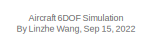
[diagram: root canvas - part 1/4, top left region]
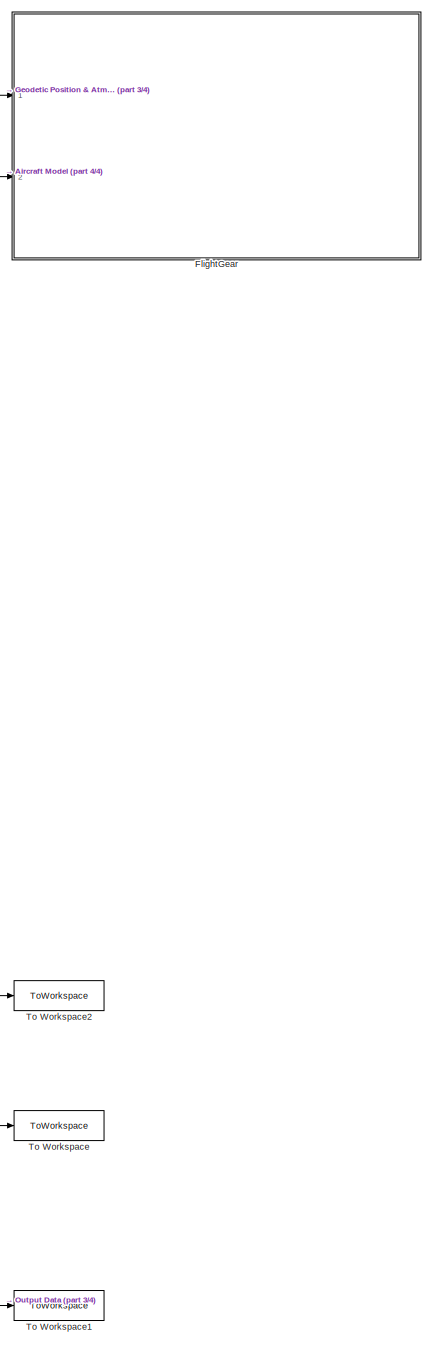
[diagram: root canvas - part 2/4, right side, full height]
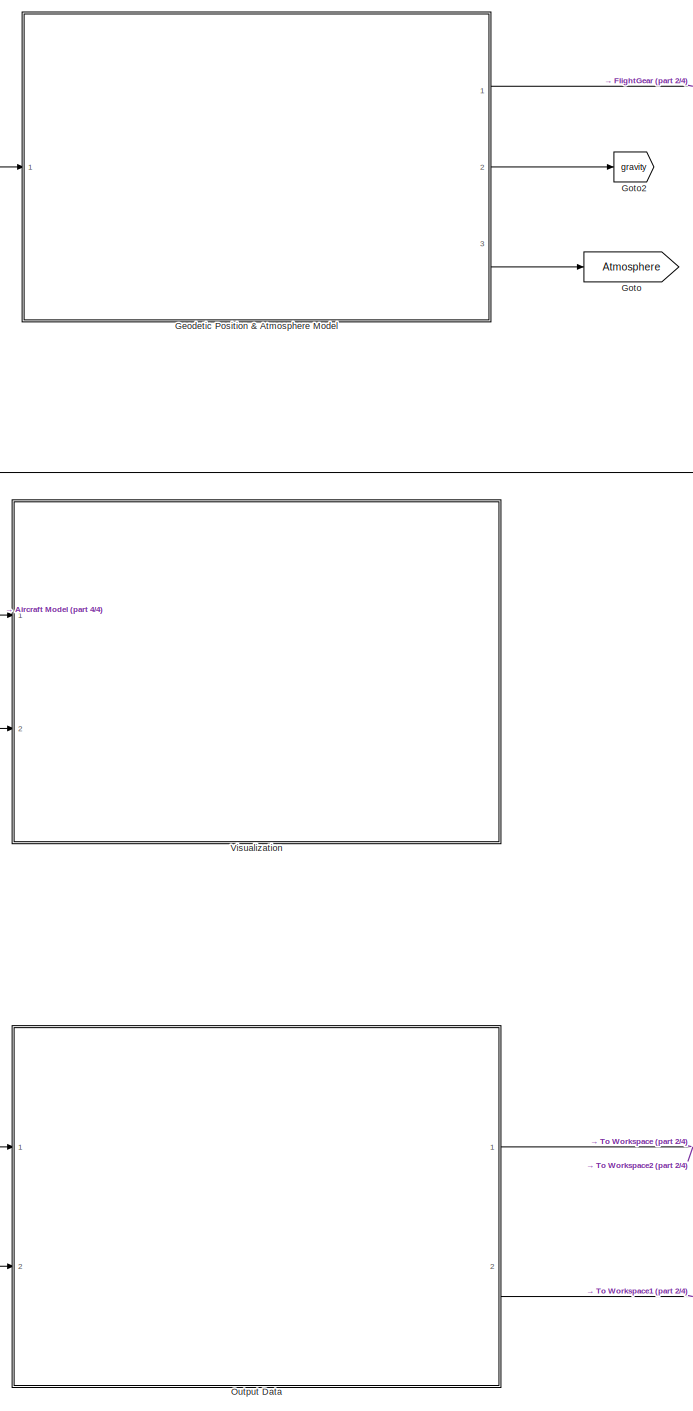
[diagram: root canvas - part 3/4, right side, full height]
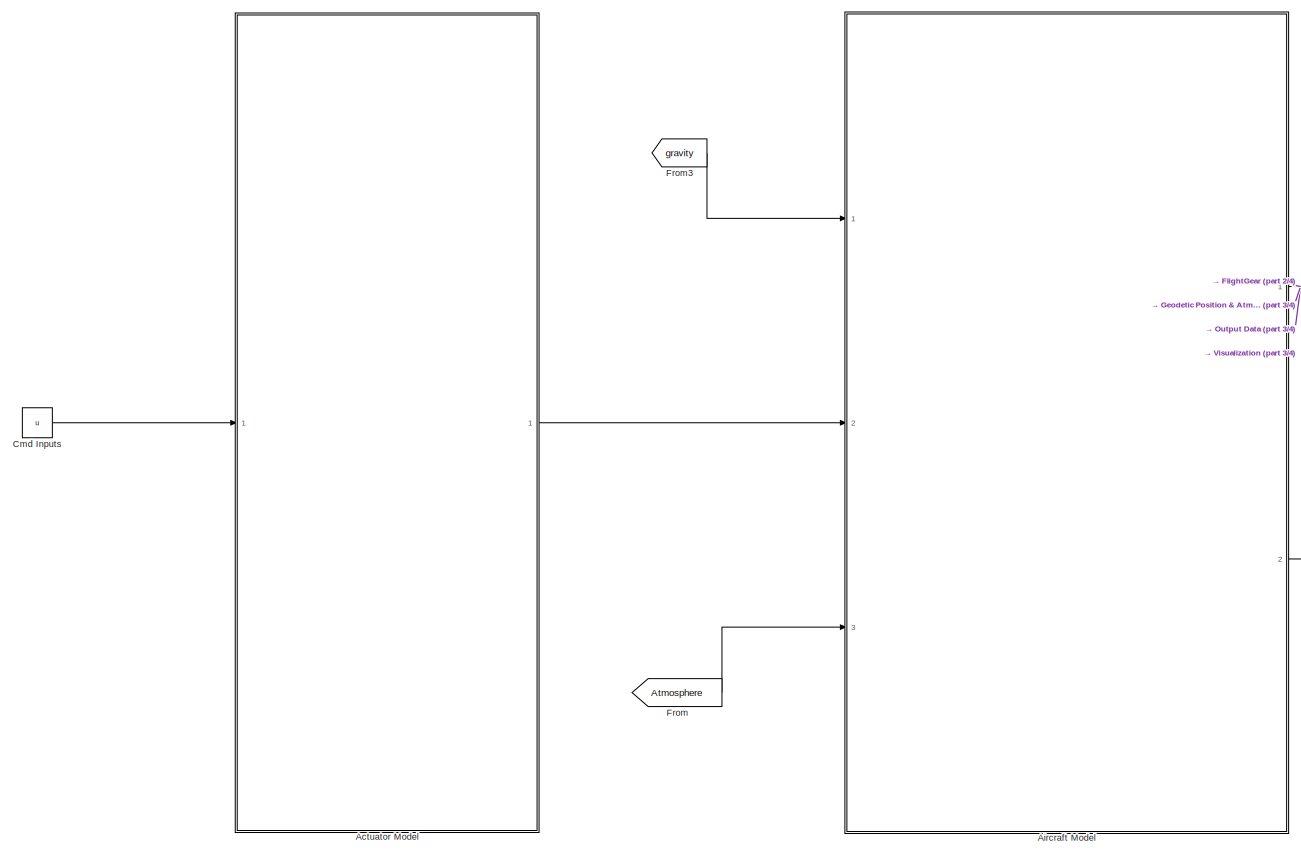
[diagram: root canvas - part 4/4, middle left region]
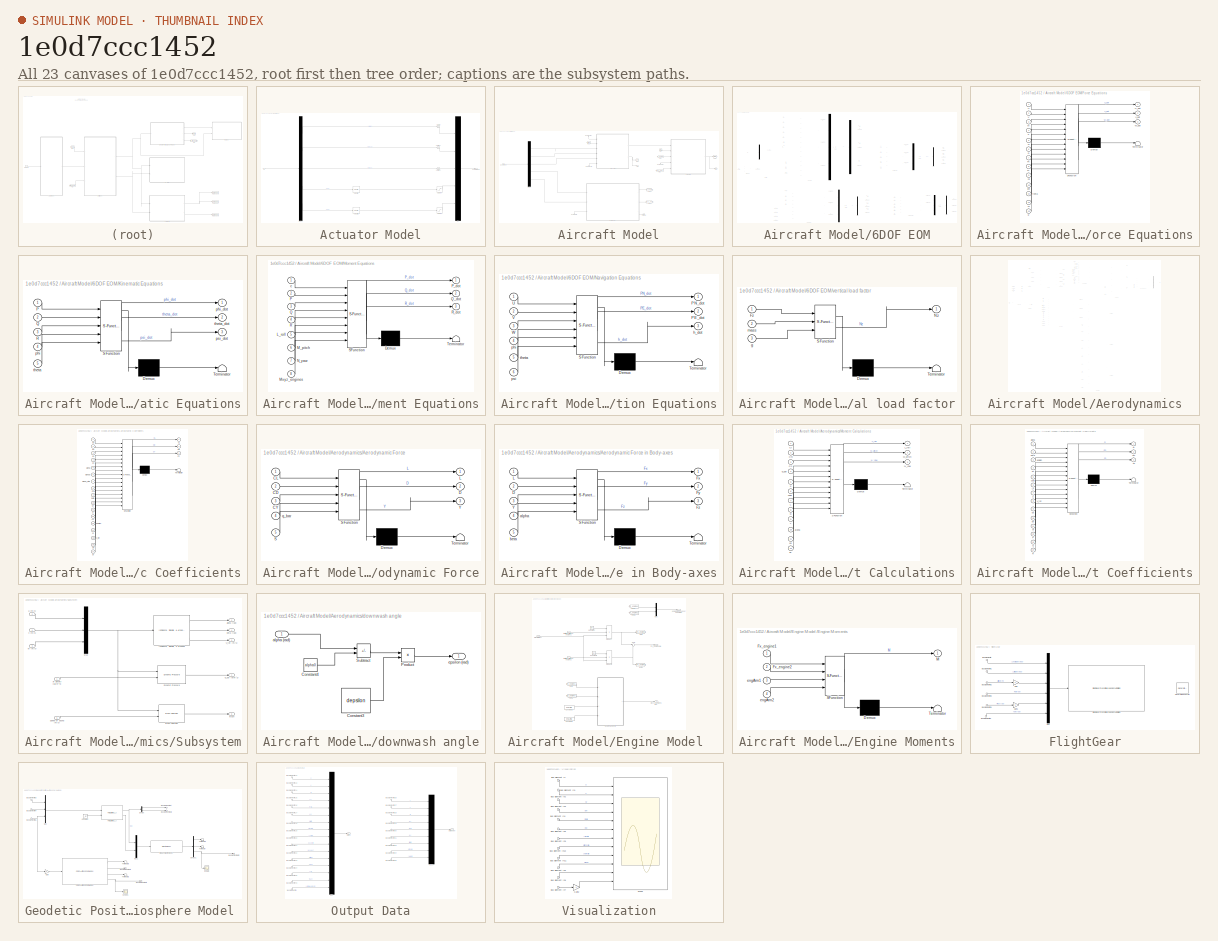
[diagram: thumbnail index - all 23 canvases of the model, root first then tree order]
MODEL slx_1e0d7ccc1452
KIND model
CONFIG AbsTol = auto
CONFIG EnableMultiTasking = off
CONFIG FixedStep = 0.5
CONFIG MaxStep = auto
CONFIG MinStep = auto
CONFIG RelTol = 1e-3
CONFIG SampleTimeConstraint = Unconstrained
CONFIG SolverName = VariableStepAuto
CONFIG StartTime = 0.0
CONFIG StopTime = 300
BLOCK [SubSystem] Actuator Model
  Ports = [1, 1]
  RequestExecContextInheritance = off
BLOCK [Demux] Actuator Model/Demux1
  Outputs = 5
  Ports = [1, 5]
BLOCK [Mux] Actuator Model/Mux
  DisplayOption = bar
  Inputs = 5
  Ports = [5, 1]
BLOCK [RateLimiter] Actuator Model/Rate Limiter
  FallingSlewLimit = falling_slew_rate
  NameLocation = right
  RisingSlewLimit = rising_slew_rate
  SampleTimeMode = inherited
BLOCK [RateLimiter] Actuator Model/Rate Limiter1
  FallingSlewLimit = falling_slew_rate
  NameLocation = right
  RisingSlewLimit = rising_slew_rate
  SampleTimeMode = inherited
BLOCK [Saturate] Actuator Model/Saturation
  LowerLimit = delta_aileronMin
  UpperLimit = delta_aileronMax
BLOCK [Saturate] Actuator Model/Saturation1
  LowerLimit = delta_elevatorMin
  UpperLimit = delta_elevatorMax
BLOCK [Saturate] Actuator Model/Saturation2
  LowerLimit = delta_rudderMin
  UpperLimit = delta_rudderMax
BLOCK [Saturate] Actuator Model/Saturation4
  LowerLimit = delta_thrustMin
  UpperLimit = delta_thrustMax
BLOCK [Saturate] Actuator Model/Saturation5
  LowerLimit = delta_thrustMin
  UpperLimit = delta_thrustMax
BLOCK [Inport] Actuator Model/U
BLOCK [Outport] Actuator Model/U (Actuator Output)
BLOCK [SubSystem] Aircraft Model
  Ports = [3, 2]
  RequestExecContextInheritance = off
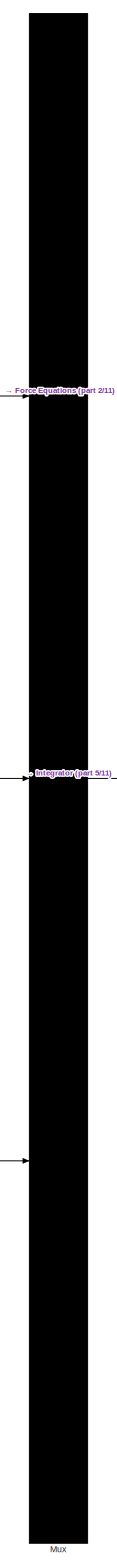
[diagram: Aircraft Model/6DOF EOM - part 1/11, top center region]
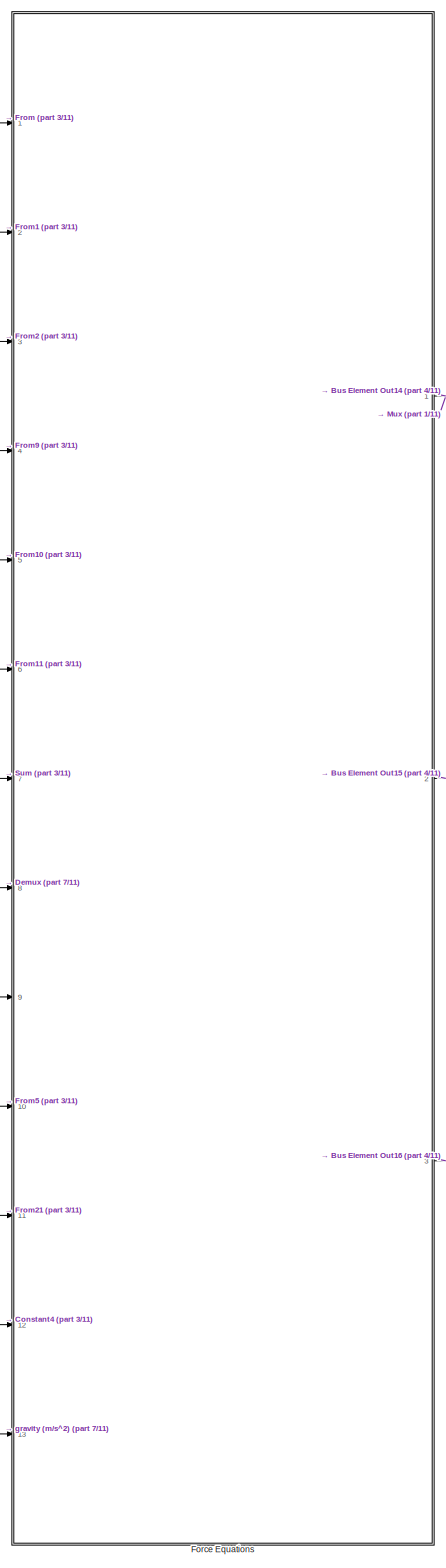
[diagram: Aircraft Model/6DOF EOM - part 2/11, top left region]
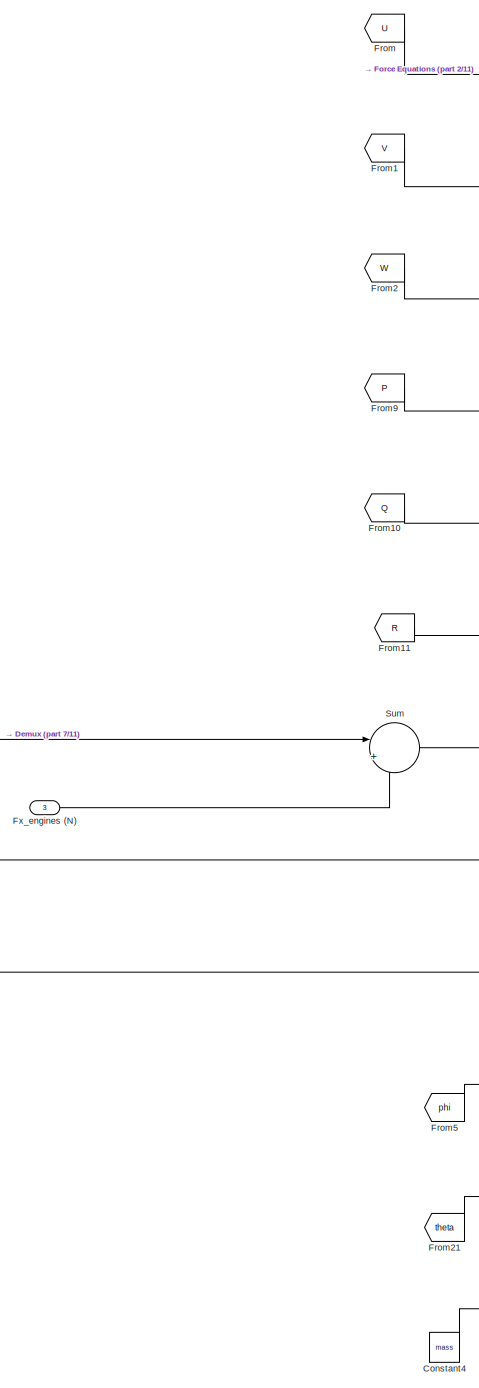
[diagram: Aircraft Model/6DOF EOM - part 3/11, top left region]
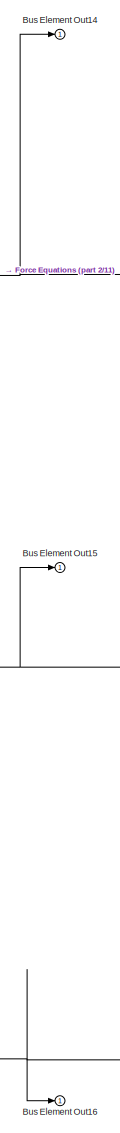
[diagram: Aircraft Model/6DOF EOM - part 4/11, top center region]
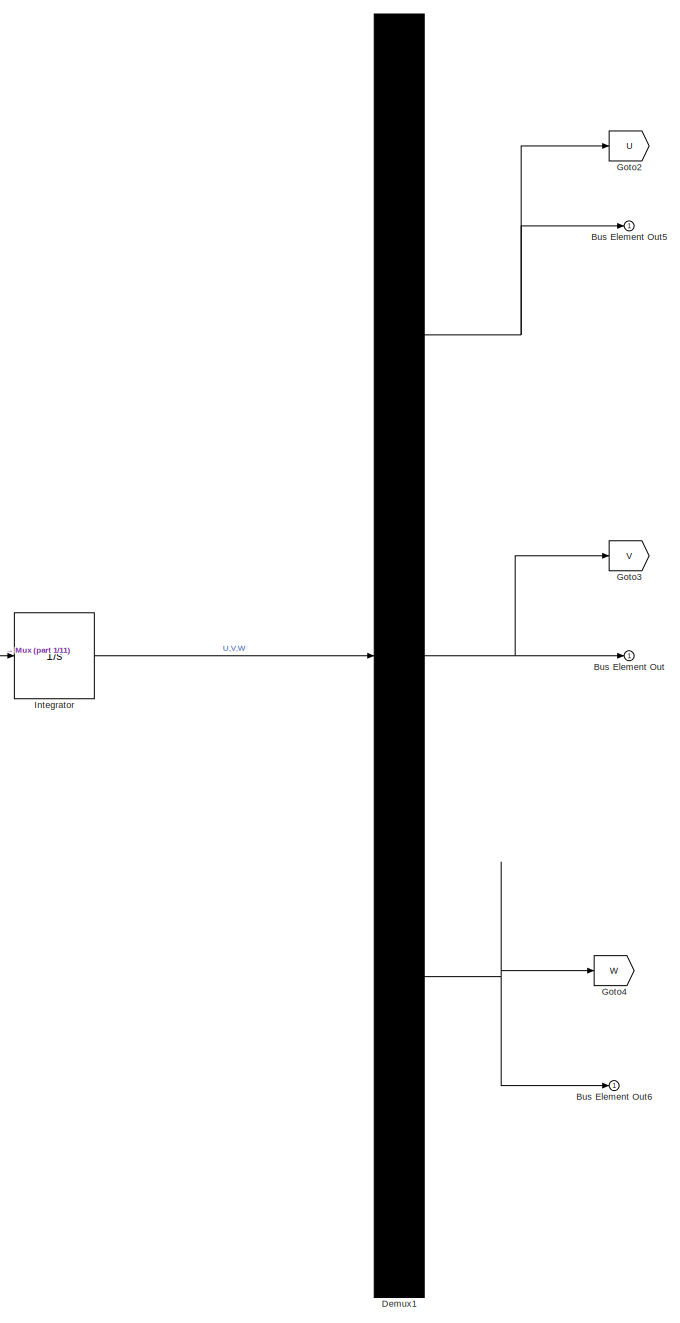
[diagram: Aircraft Model/6DOF EOM - part 5/11, top center region]
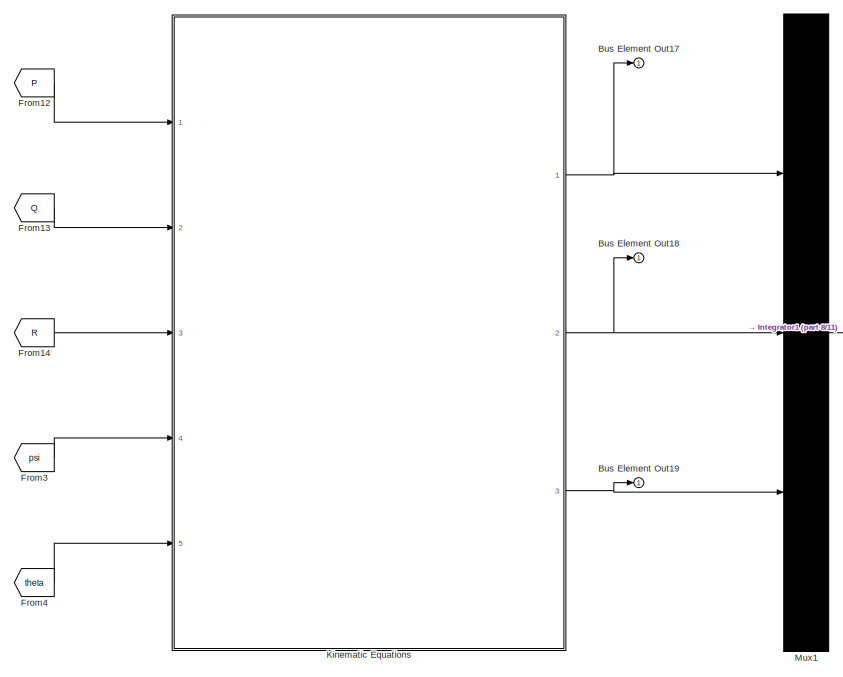
[diagram: Aircraft Model/6DOF EOM - part 6/11, middle right region]
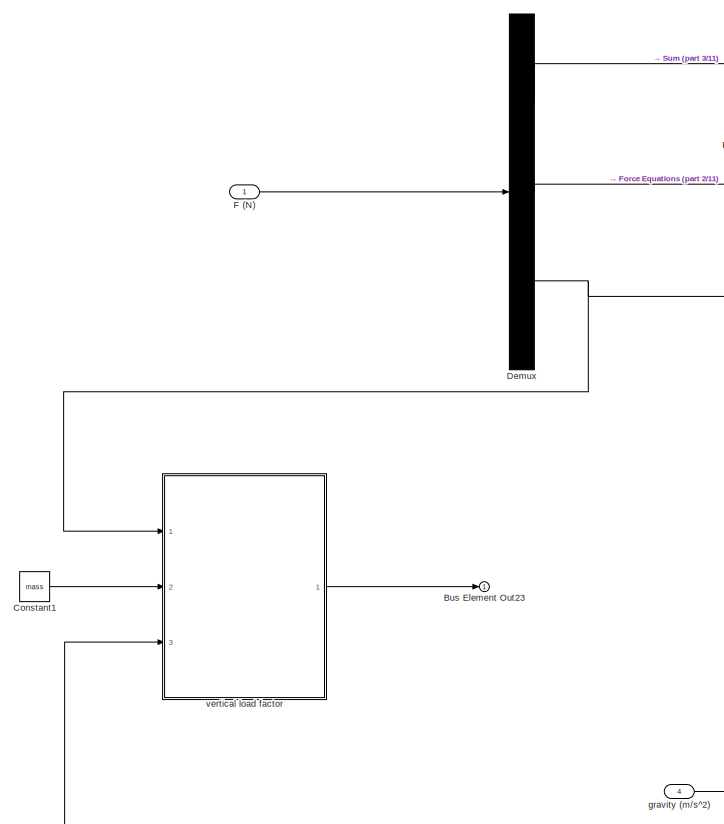
[diagram: Aircraft Model/6DOF EOM - part 7/11, middle left region]
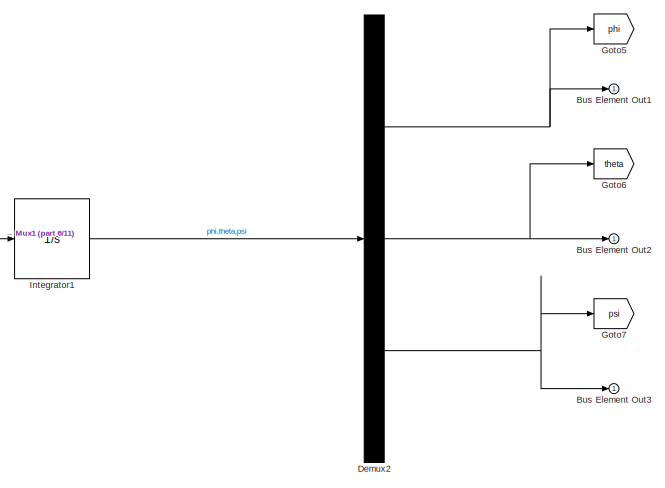
[diagram: Aircraft Model/6DOF EOM - part 8/11, middle right region]
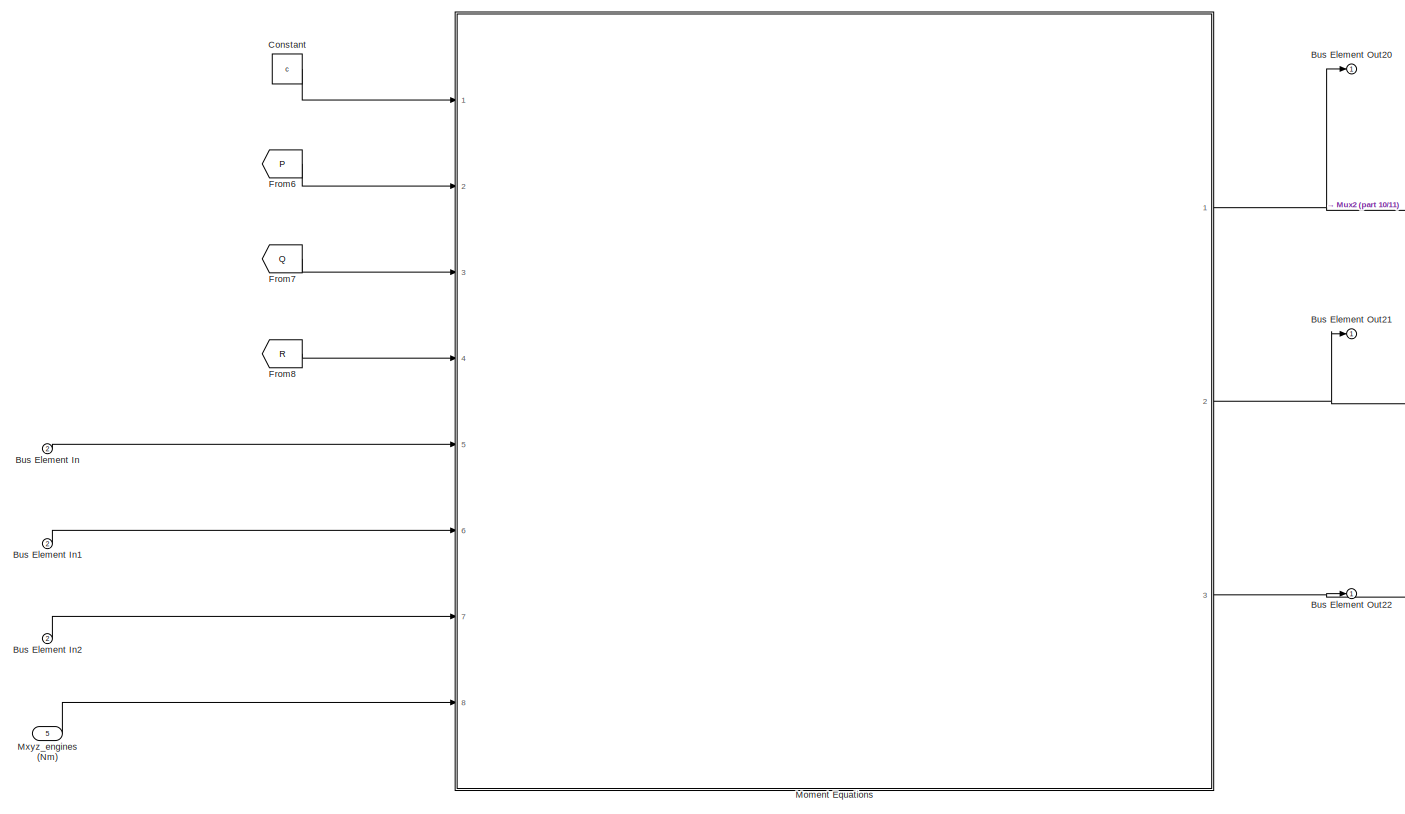
[diagram: Aircraft Model/6DOF EOM - part 9/11, bottom left region]
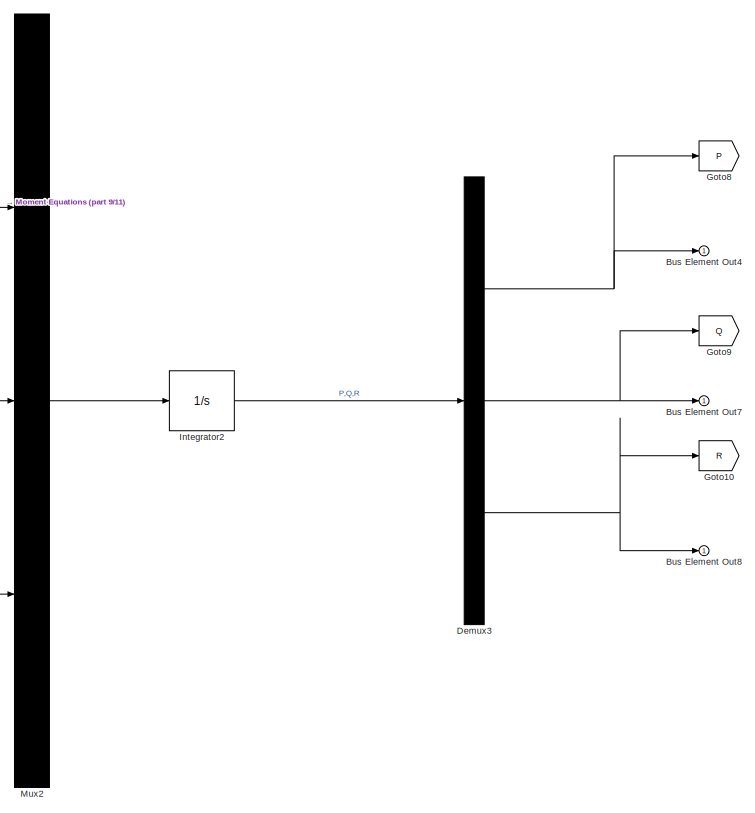
[diagram: Aircraft Model/6DOF EOM - part 10/11, bottom center region]
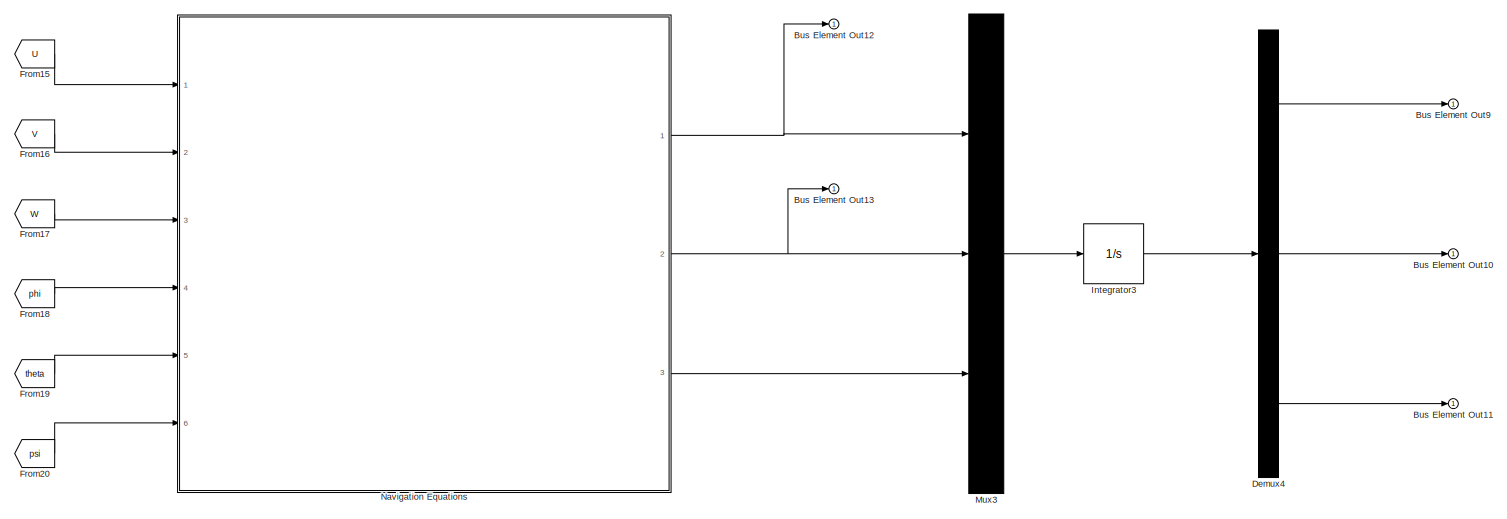
[diagram: Aircraft Model/6DOF EOM - part 11/11, bottom right region]
BLOCK [SubSystem] Aircraft Model/6DOF EOM
  Ports = [5, 1]
  RequestExecContextInheritance = off
BLOCK [Inport] Aircraft Model/6DOF EOM/Bus Element In
  Port = 2
BLOCK [Inport] Aircraft Model/6DOF EOM/Bus Element In1
  Port = 2
BLOCK [Inport] Aircraft Model/6DOF EOM/Bus Element In2
  Port = 2
BLOCK [Outport] Aircraft Model/6DOF EOM/Bus Element Out
  VectorParamsAs1DForOutWhenUnconnected = off
BLOCK [Outport] Aircraft Model/6DOF EOM/Bus Element Out1
  VectorParamsAs1DForOutWhenUnconnected = off
BLOCK [Outport] Aircraft Model/6DOF EOM/Bus Element Out10
  VectorParamsAs1DForOutWhenUnconnected = off
BLOCK [Outport] Aircraft Model/6DOF EOM/Bus Element Out11
  VectorParamsAs1DForOutWhenUnconnected = off
BLOCK [Outport] Aircraft Model/6DOF EOM/Bus Element Out12
  VectorParamsAs1DForOutWhenUnconnected = off
BLOCK [Outport] Aircraft Model/6DOF EOM/Bus Element Out13
  VectorParamsAs1DForOutWhenUnconnected = off
BLOCK [Outport] Aircraft Model/6DOF EOM/Bus Element Out14
  VectorParamsAs1DForOutWhenUnconnected = off
BLOCK [Outport] Aircraft Model/6DOF EOM/Bus Element Out15
  VectorParamsAs1DForOutWhenUnconnected = off
BLOCK [Outport] Aircraft Model/6DOF EOM/Bus Element Out16
  VectorParamsAs1DForOutWhenUnconnected = off
BLOCK [Outport] Aircraft Model/6DOF EOM/Bus Element Out17
  VectorParamsAs1DForOutWhenUnconnected = off
BLOCK [Outport] Aircraft Model/6DOF EOM/Bus Element Out18
  VectorParamsAs1DForOutWhenUnconnected = off
BLOCK [Outport] Aircraft Model/6DOF EOM/Bus Element Out19
  VectorParamsAs1DForOutWhenUnconnected = off
BLOCK [Outport] Aircraft Model/6DOF EOM/Bus Element Out2
  VectorParamsAs1DForOutWhenUnconnected = off
BLOCK [Outport] Aircraft Model/6DOF EOM/Bus Element Out20
  VectorParamsAs1DForOutWhenUnconnected = off
BLOCK [Outport] Aircraft Model/6DOF EOM/Bus Element Out21
  VectorParamsAs1DForOutWhenUnconnected = off
BLOCK [Outport] Aircraft Model/6DOF EOM/Bus Element Out22
  VectorParamsAs1DForOutWhenUnconnected = off
BLOCK [Outport] Aircraft Model/6DOF EOM/Bus Element Out23
  VectorParamsAs1DForOutWhenUnconnected = off
BLOCK [Outport] Aircraft Model/6DOF EOM/Bus Element Out3
  VectorParamsAs1DForOutWhenUnconnected = off
BLOCK [Outport] Aircraft Model/6DOF EOM/Bus Element Out4
  VectorParamsAs1DForOutWhenUnconnected = off
BLOCK [Outport] Aircraft Model/6DOF EOM/Bus Element Out5
  VectorParamsAs1DForOutWhenUnconnected = off
BLOCK [Outport] Aircraft Model/6DOF EOM/Bus Element Out6
  VectorParamsAs1DForOutWhenUnconnected = off
BLOCK [Outport] Aircraft Model/6DOF EOM/Bus Element Out7
  VectorParamsAs1DForOutWhenUnconnected = off
BLOCK [Outport] Aircraft Model/6DOF EOM/Bus Element Out8
  VectorParamsAs1DForOutWhenUnconnected = off
BLOCK [Outport] Aircraft Model/6DOF EOM/Bus Element Out9
  VectorParamsAs1DForOutWhenUnconnected = off
BLOCK [Constant] Aircraft Model/6DOF EOM/Constant
  Value = c
BLOCK [Constant] Aircraft Model/6DOF EOM/Constant1
  Value = mass
BLOCK [Constant] Aircraft Model/6DOF EOM/Constant4
  Value = mass
BLOCK [Demux] Aircraft Model/6DOF EOM/Demux
  Outputs = 3
  Ports = [1, 3]
BLOCK [Demux] Aircraft Model/6DOF EOM/Demux1
  Outputs = 3
  Ports = [1, 3]
BLOCK [Demux] Aircraft Model/6DOF EOM/Demux2
  Outputs = 3
  Ports = [1, 3]
BLOCK [Demux] Aircraft Model/6DOF EOM/Demux3
  Outputs = 3
  Ports = [1, 3]
BLOCK [Demux] Aircraft Model/6DOF EOM/Demux4
  Outputs = 3
  Ports = [1, 3]
BLOCK [Inport] Aircraft Model/6DOF EOM/F (N)
BLOCK [SubSystem] Aircraft Model/6DOF EOM/Force Equations
  ErrorFcn = Stateflow.Translate.translate
  PermitHierarchicalResolution = ExplicitOnly
  Ports = [13, 3]
  RequestExecContextInheritance = off
  SFBlockType = MATLAB Function
  TreatAsAtomicUnit = on
BLOCK [Demux] Aircraft Model/6DOF EOM/Force Equations/ Demux 
  Outputs = 1
  Ports = [1, 1]
BLOCK [S-Function] Aircraft Model/6DOF EOM/Force Equations/ SFunction 
  EnableBusSupport = on
  FunctionName = sf_sfun
  PortCounts = [13 4]
  Ports = [13, 4]
  SFcnIsStateOwnerBlock = off
  SFunctionDeploymentMode = off
  Tag = Stateflow S-Function 3
BLOCK [Terminator] Aircraft Model/6DOF EOM/Force Equations/ Terminator 
BLOCK [Inport] Aircraft Model/6DOF EOM/Force Equations/Fx
  Port = 7
BLOCK [Inport] Aircraft Model/6DOF EOM/Force Equations/Fy
  Port = 8
BLOCK [Inport] Aircraft Model/6DOF EOM/Force Equations/Fz
  Port = 9
BLOCK [Inport] Aircraft Model/6DOF EOM/Force Equations/P
  Port = 4
BLOCK [Inport] Aircraft Model/6DOF EOM/Force Equations/Q
  Port = 5
BLOCK [Inport] Aircraft Model/6DOF EOM/Force Equations/R
  Port = 6
BLOCK [Inport] Aircraft Model/6DOF EOM/Force Equations/U
BLOCK [Outport] Aircraft Model/6DOF EOM/Force Equations/U_dot
BLOCK [Inport] Aircraft Model/6DOF EOM/Force Equations/V
  Port = 2
BLOCK [Outport] Aircraft Model/6DOF EOM/Force Equations/V_dot
  Port = 2
BLOCK [Inport] Aircraft Model/6DOF EOM/Force Equations/W
  Port = 3
BLOCK [Outport] Aircraft Model/6DOF EOM/Force Equations/W_dot
  Port = 3
BLOCK [Inport] Aircraft Model/6DOF EOM/Force Equations/g
  Port = 13
BLOCK [Inport] Aircraft Model/6DOF EOM/Force Equations/m
  Port = 12
BLOCK [Inport] Aircraft Model/6DOF EOM/Force Equations/phi
  Port = 10
BLOCK [Inport] Aircraft Model/6DOF EOM/Force Equations/theta
  Port = 11
BLOCK [From] Aircraft Model/6DOF EOM/From
  GotoTag = U
BLOCK [From] Aircraft Model/6DOF EOM/From1
  GotoTag = V
BLOCK [From] Aircraft Model/6DOF EOM/From10
  GotoTag = Q
BLOCK [From] Aircraft Model/6DOF EOM/From11
  GotoTag = R
BLOCK [From] Aircraft Model/6DOF EOM/From12
  GotoTag = P
BLOCK [From] Aircraft Model/6DOF EOM/From13
  GotoTag = Q
BLOCK [From] Aircraft Model/6DOF EOM/From14
  GotoTag = R
BLOCK [From] Aircraft Model/6DOF EOM/From15
  GotoTag = U
BLOCK [From] Aircraft Model/6DOF EOM/From16
  GotoTag = V
BLOCK [From] Aircraft Model/6DOF EOM/From17
  GotoTag = W
BLOCK [From] Aircraft Model/6DOF EOM/From18
  GotoTag = phi
BLOCK [From] Aircraft Model/6DOF EOM/From19
  GotoTag = theta
BLOCK [From] Aircraft Model/6DOF EOM/From2
  GotoTag = W
BLOCK [From] Aircraft Model/6DOF EOM/From20
  GotoTag = psi
BLOCK [From] Aircraft Model/6DOF EOM/From21
  GotoTag = theta
BLOCK [From] Aircraft Model/6DOF EOM/From3
  GotoTag = psi
BLOCK [From] Aircraft Model/6DOF EOM/From4
  GotoTag = theta
BLOCK [From] Aircraft Model/6DOF EOM/From5
  GotoTag = phi
BLOCK [From] Aircraft Model/6DOF EOM/From6
  GotoTag = P
BLOCK [From] Aircraft Model/6DOF EOM/From7
  GotoTag = Q
BLOCK [From] Aircraft Model/6DOF EOM/From8
  GotoTag = R
BLOCK [From] Aircraft Model/6DOF EOM/From9
  GotoTag = P
BLOCK [Inport] Aircraft Model/6DOF EOM/Fx_engines (N)
  Port = 3
BLOCK [Goto] Aircraft Model/6DOF EOM/Goto10
  GotoTag = R
BLOCK [Goto] Aircraft Model/6DOF EOM/Goto2
  GotoTag = U
BLOCK [Goto] Aircraft Model/6DOF EOM/Goto3
  GotoTag = V
BLOCK [Goto] Aircraft Model/6DOF EOM/Goto4
  GotoTag = W
BLOCK [Goto] Aircraft Model/6DOF EOM/Goto5
  GotoTag = phi
BLOCK [Goto] Aircraft Model/6DOF EOM/Goto6
  GotoTag = theta
BLOCK [Goto] Aircraft Model/6DOF EOM/Goto7
  GotoTag = psi
BLOCK [Goto] Aircraft Model/6DOF EOM/Goto8
  GotoTag = P
BLOCK [Goto] Aircraft Model/6DOF EOM/Goto9
  GotoTag = Q
BLOCK [Integrator] Aircraft Model/6DOF EOM/Integrator
  ContinuousStateAttributes = 'U_V_W'
  InitialCondition = x(1:3)
  Ports = [1, 1]
BLOCK [Integrator] Aircraft Model/6DOF EOM/Integrator1
  ContinuousStateAttributes = 'phi_theta_psi'
  InitialCondition = x(4:6)
  Ports = [1, 1]
  WrapState = on
BLOCK [Integrator] Aircraft Model/6DOF EOM/Integrator2
  ContinuousStateAttributes = 'P_Q_R'
  InitialCondition = x(7:9)
  Ports = [1, 1]
BLOCK [Integrator] Aircraft Model/6DOF EOM/Integrator3
  ContinuousStateAttributes = 'PN_PE_h'
  InitialCondition = x(10:12)
  Ports = [1, 1]
BLOCK [SubSystem] Aircraft Model/6DOF EOM/Kinematic Equations
  ErrorFcn = Stateflow.Translate.translate
  PermitHierarchicalResolution = ExplicitOnly
  Ports = [5, 3]
  RequestExecContextInheritance = off
  SFBlockType = MATLAB Function
  TreatAsAtomicUnit = on
BLOCK [Demux] Aircraft Model/6DOF EOM/Kinematic Equations/ Demux 
  Outputs = 1
  Ports = [1, 1]
BLOCK [S-Function] Aircraft Model/6DOF EOM/Kinematic Equations/ SFunction 
  EnableBusSupport = on
  FunctionName = sf_sfun
  PortCounts = [5 4]
  Ports = [5, 4]
  SFcnIsStateOwnerBlock = off
  SFunctionDeploymentMode = off
  Tag = Stateflow S-Function 4
BLOCK [Terminator] Aircraft Model/6DOF EOM/Kinematic Equations/ Terminator 
BLOCK [Inport] Aircraft Model/6DOF EOM/Kinematic Equations/P
BLOCK [Inport] Aircraft Model/6DOF EOM/Kinematic Equations/Q
  Port = 2
BLOCK [Inport] Aircraft Model/6DOF EOM/Kinematic Equations/R
  Port = 3
BLOCK [Inport] Aircraft Model/6DOF EOM/Kinematic Equations/phi
  Port = 4
BLOCK [Outport] Aircraft Model/6DOF EOM/Kinematic Equations/phi_dot
BLOCK [Outport] Aircraft Model/6DOF EOM/Kinematic Equations/psi_dot
  Port = 3
BLOCK [Inport] Aircraft Model/6DOF EOM/Kinematic Equations/theta
  Port = 5
BLOCK [Outport] Aircraft Model/6DOF EOM/Kinematic Equations/theta_dot
  Port = 2
BLOCK [SubSystem] Aircraft Model/6DOF EOM/Moment Equations
  ErrorFcn = Stateflow.Translate.translate
  PermitHierarchicalResolution = ExplicitOnly
  Ports = [8, 3]
  RequestExecContextInheritance = off
  SFBlockType = MATLAB Function
  TreatAsAtomicUnit = on
BLOCK [Demux] Aircraft Model/6DOF EOM/Moment Equations/ Demux 
  Outputs = 1
  Ports = [1, 1]
BLOCK [S-Function] Aircraft Model/6DOF EOM/Moment Equations/ SFunction 
  EnableBusSupport = on
  FunctionName = sf_sfun
  PortCounts = [8 4]
  Ports = [8, 4]
  SFcnIsStateOwnerBlock = off
  SFunctionDeploymentMode = off
  Tag = Stateflow S-Function 5
BLOCK [Terminator] Aircraft Model/6DOF EOM/Moment Equations/ Terminator 
BLOCK [Inport] Aircraft Model/6DOF EOM/Moment Equations/L_roll
  Port = 5
BLOCK [Inport] Aircraft Model/6DOF EOM/Moment Equations/M_pitch
  Port = 6
BLOCK [Inport] Aircraft Model/6DOF EOM/Moment Equations/Mxyz_engines
  Port = 8
BLOCK [Inport] Aircraft Model/6DOF EOM/Moment Equations/N_yaw
  Port = 7
BLOCK [Inport] Aircraft Model/6DOF EOM/Moment Equations/P
  Port = 2
BLOCK [Outport] Aircraft Model/6DOF EOM/Moment Equations/P_dot
BLOCK [Inport] Aircraft Model/6DOF EOM/Moment Equations/Q
  Port = 3
BLOCK [Outport] Aircraft Model/6DOF EOM/Moment Equations/Q_dot
  Port = 2
BLOCK [Inport] Aircraft Model/6DOF EOM/Moment Equations/R
  Port = 4
BLOCK [Outport] Aircraft Model/6DOF EOM/Moment Equations/R_dot
  Port = 3
BLOCK [Inport] Aircraft Model/6DOF EOM/Moment Equations/c
BLOCK [Mux] Aircraft Model/6DOF EOM/Mux
  DisplayOption = bar
  Inputs = 3
  Ports = [3, 1]
BLOCK [Mux] Aircraft Model/6DOF EOM/Mux1
  DisplayOption = bar
  Inputs = 3
  Ports = [3, 1]
BLOCK [Mux] Aircraft Model/6DOF EOM/Mux2
  DisplayOption = bar
  Inputs = 3
  Ports = [3, 1]
BLOCK [Mux] Aircraft Model/6DOF EOM/Mux3
  DisplayOption = bar
  Inputs = 3
  Ports = [3, 1]
BLOCK [Inport] Aircraft Model/6DOF EOM/Mxyz_engines (Nm) 
  Port = 5
BLOCK [SubSystem] Aircraft Model/6DOF EOM/Navigation Equations
  ErrorFcn = Stateflow.Translate.translate
  PermitHierarchicalResolution = ExplicitOnly
  Ports = [6, 3]
  RequestExecContextInheritance = off
  SFBlockType = MATLAB Function
  TreatAsAtomicUnit = on
BLOCK [Demux] Aircraft Model/6DOF EOM/Navigation Equations/ Demux 
  Outputs = 1
  Ports = [1, 1]
BLOCK [S-Function] Aircraft Model/6DOF EOM/Navigation Equations/ SFunction 
  EnableBusSupport = on
  FunctionName = sf_sfun
  PortCounts = [6 4]
  Ports = [6, 4]
  SFcnIsStateOwnerBlock = off
  SFunctionDeploymentMode = off
  Tag = Stateflow S-Function 6
BLOCK [Terminator] Aircraft Model/6DOF EOM/Navigation Equations/ Terminator 
BLOCK [Outport] Aircraft Model/6DOF EOM/Navigation Equations/PE_dot
  Port = 2
BLOCK [Outport] Aircraft Model/6DOF EOM/Navigation Equations/PN_dot
BLOCK [Inport] Aircraft Model/6DOF EOM/Navigation Equations/U
BLOCK [Inport] Aircraft Model/6DOF EOM/Navigation Equations/V
  Port = 2
BLOCK [Inport] Aircraft Model/6DOF EOM/Navigation Equations/W
  Port = 3
BLOCK [Outport] Aircraft Model/6DOF EOM/Navigation Equations/h_dot
  Port = 3
BLOCK [Inport] Aircraft Model/6DOF EOM/Navigation Equations/phi
  Port = 4
BLOCK [Inport] Aircraft Model/6DOF EOM/Navigation Equations/psi
  Port = 6
BLOCK [Inport] Aircraft Model/6DOF EOM/Navigation Equations/theta
  Port = 5
BLOCK [Sum] Aircraft Model/6DOF EOM/Sum
  Inputs = |++
  Ports = [2, 1]
BLOCK [Inport] Aircraft Model/6DOF EOM/gravity  (m//s^2)
  Port = 4
BLOCK [SubSystem] Aircraft Model/6DOF EOM/vertical load factor
  ErrorFcn = Stateflow.Translate.translate
  PermitHierarchicalResolution = ExplicitOnly
  Ports = [3, 1]
  RequestExecContextInheritance = off
  SFBlockType = MATLAB Function
  TreatAsAtomicUnit = on
BLOCK [Demux] Aircraft Model/6DOF EOM/vertical load factor/ Demux 
  Outputs = 1
  Ports = [1, 1]
BLOCK [S-Function] Aircraft Model/6DOF EOM/vertical load factor/ SFunction 
  EnableBusSupport = on
  FunctionName = sf_sfun
  PortCounts = [3 2]
  Ports = [3, 2]
  SFcnIsStateOwnerBlock = off
  SFunctionDeploymentMode = off
  Tag = Stateflow S-Function 11
BLOCK [Terminator] Aircraft Model/6DOF EOM/vertical load factor/ Terminator 
BLOCK [Inport] Aircraft Model/6DOF EOM/vertical load factor/Fz
BLOCK [Outport] Aircraft Model/6DOF EOM/vertical load factor/Nz
BLOCK [Inport] Aircraft Model/6DOF EOM/vertical load factor/g
  Port = 3
BLOCK [Inport] Aircraft Model/6DOF EOM/vertical load factor/mass
  Port = 2
BLOCK [Outport] Aircraft Model/Aero
  Port = 2
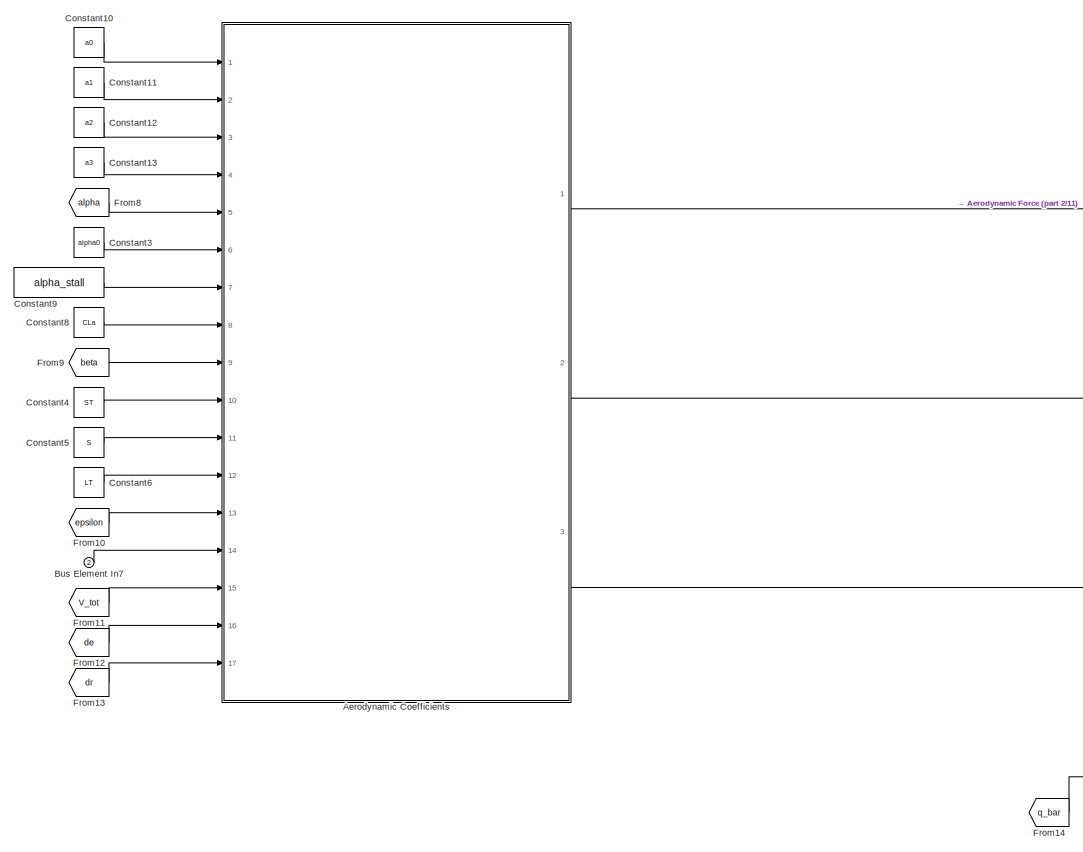
[diagram: Aircraft Model/Aerodynamics - part 1/11, top center region]
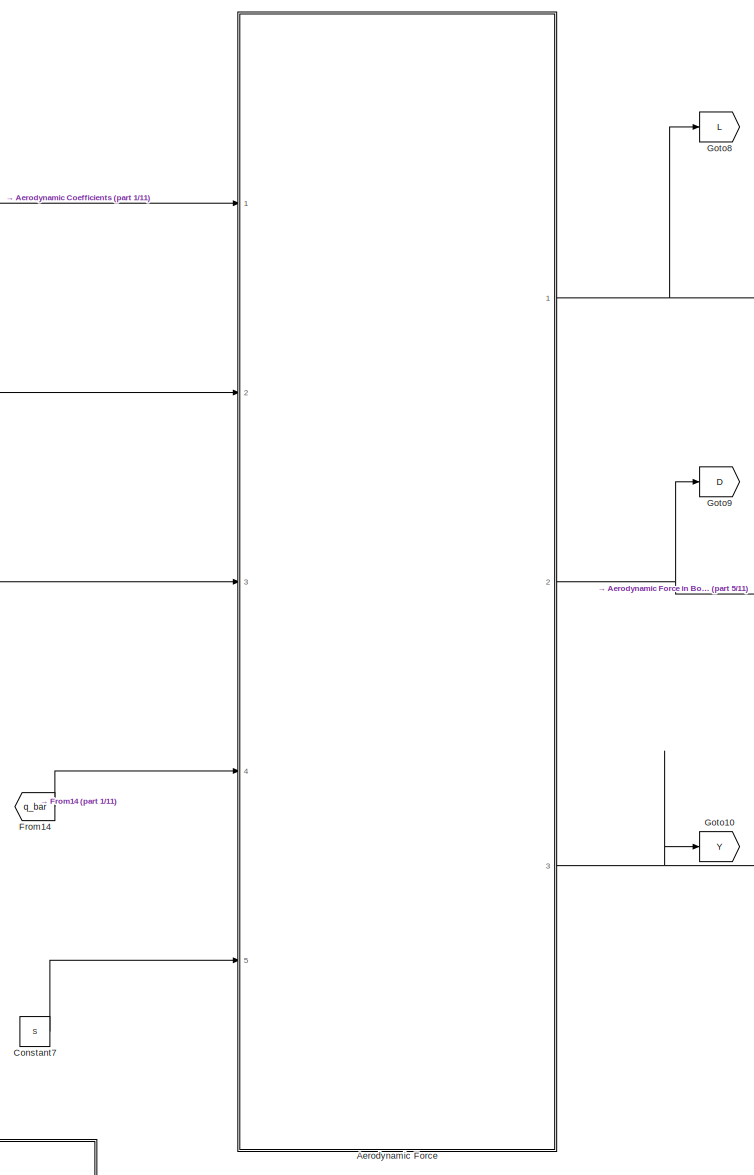
[diagram: Aircraft Model/Aerodynamics - part 2/11, top right region]
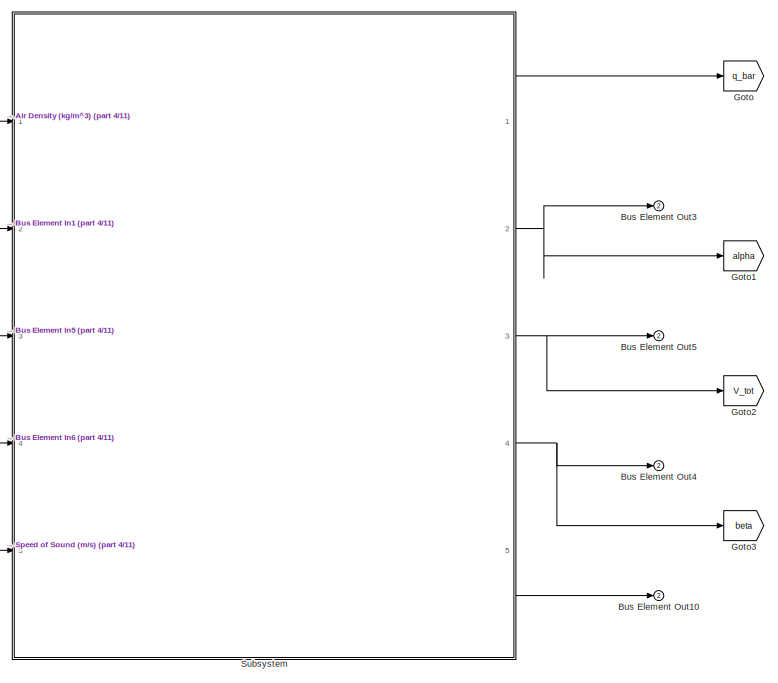
[diagram: Aircraft Model/Aerodynamics - part 3/11, top left region]
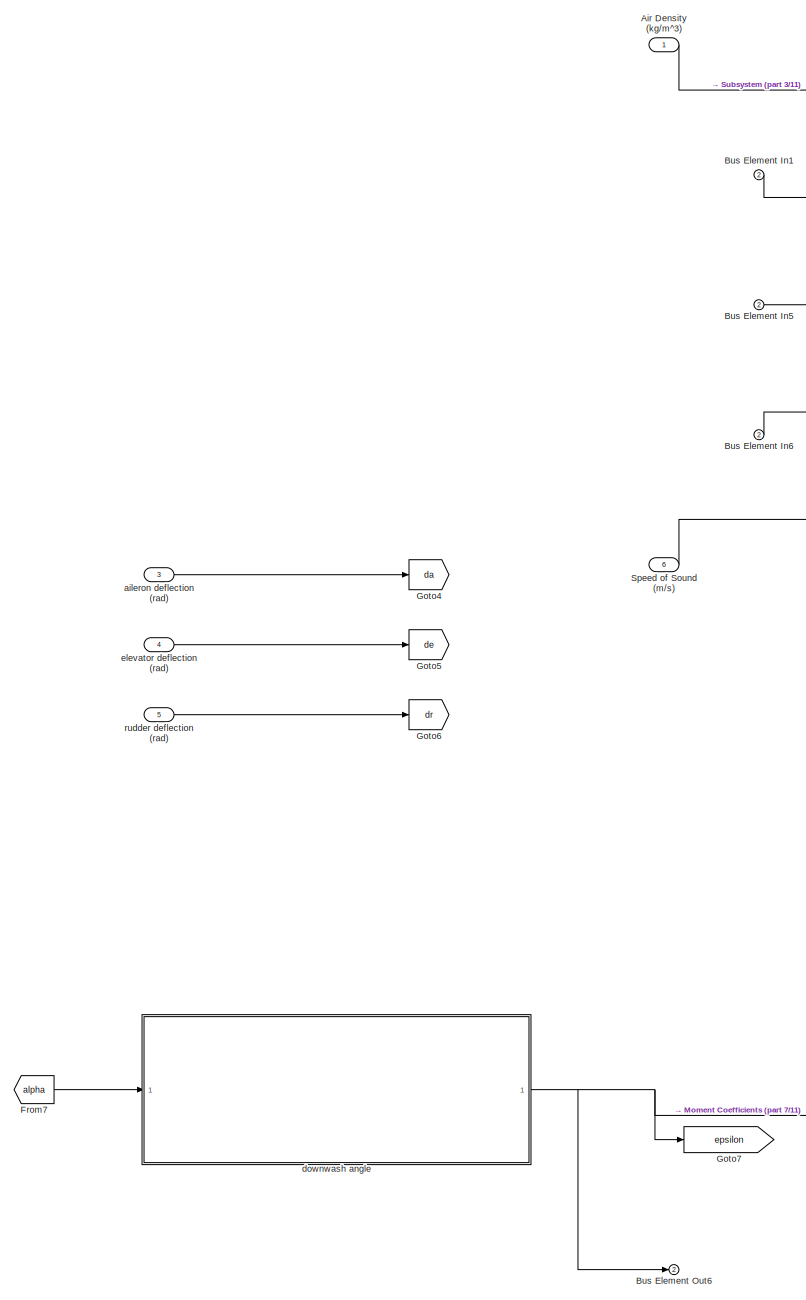
[diagram: Aircraft Model/Aerodynamics - part 4/11, top left region]
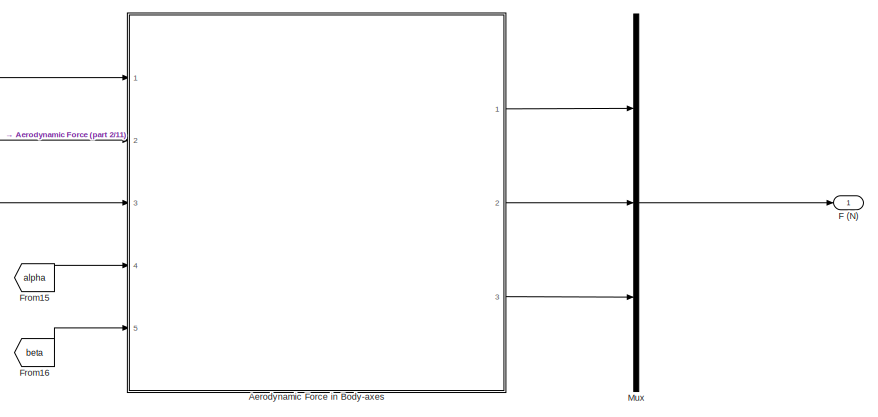
[diagram: Aircraft Model/Aerodynamics - part 5/11, top right region]
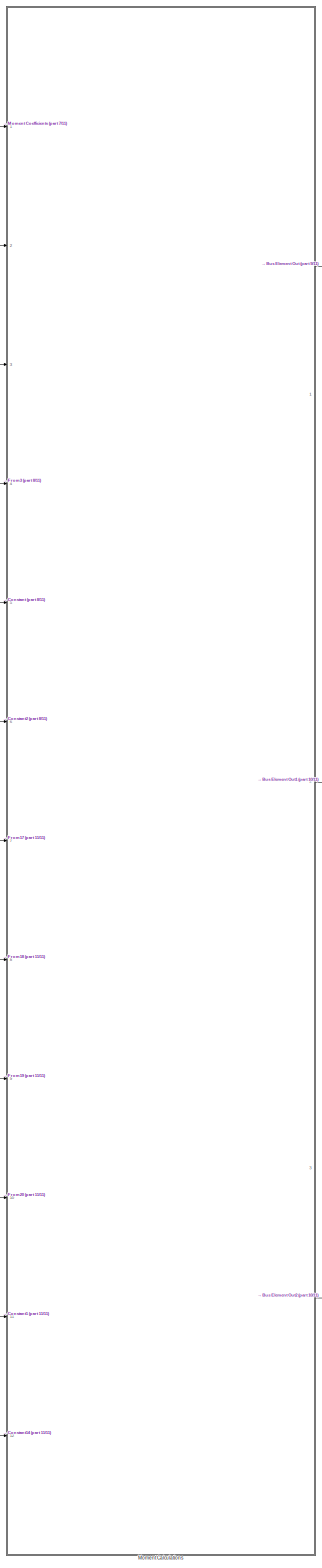
[diagram: Aircraft Model/Aerodynamics - part 6/11, central region]
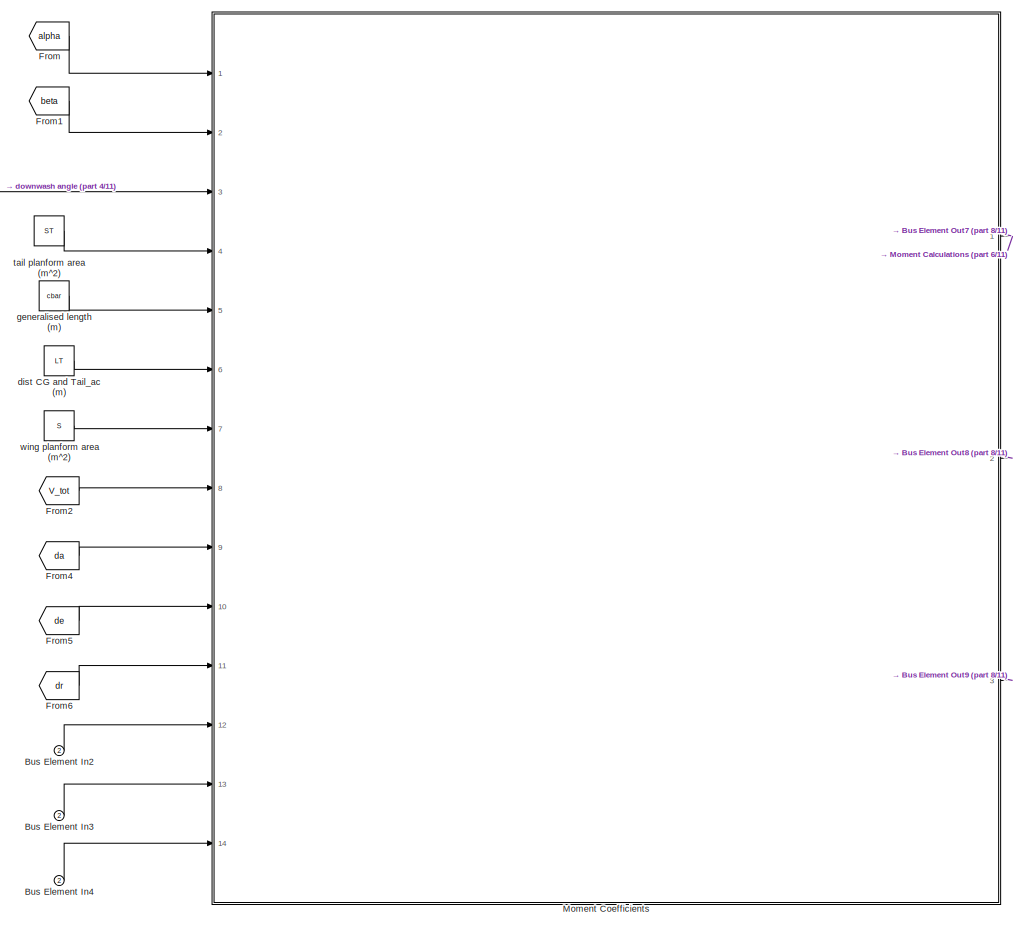
[diagram: Aircraft Model/Aerodynamics - part 7/11, middle left region]
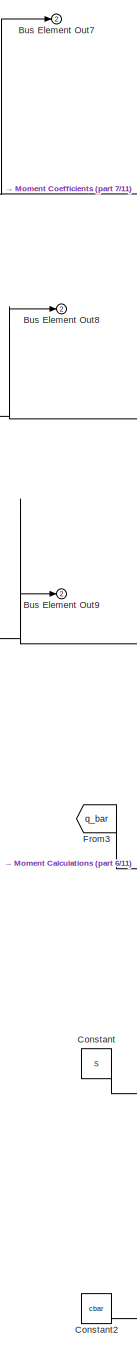
[diagram: Aircraft Model/Aerodynamics - part 8/11, central region]
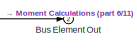
[diagram: Aircraft Model/Aerodynamics - part 9/11, middle right region]
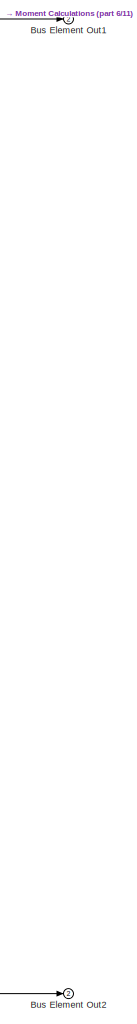
[diagram: Aircraft Model/Aerodynamics - part 10/11, bottom right region]
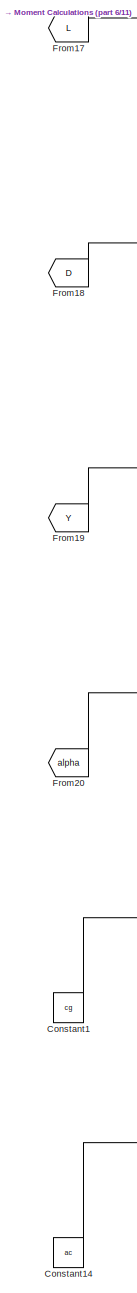
[diagram: Aircraft Model/Aerodynamics - part 11/11, bottom center region]
BLOCK [SubSystem] Aircraft Model/Aerodynamics
  Ports = [6, 2]
  RequestExecContextInheritance = off
BLOCK [Inport] Aircraft Model/Aerodynamics/ elevator deflection (rad)
  Port = 4
BLOCK [SubSystem] Aircraft Model/Aerodynamics/Aerodynamic Coefficients
  ErrorFcn = Stateflow.Translate.translate
  PermitHierarchicalResolution = ExplicitOnly
  Ports = [17, 3]
  RequestExecContextInheritance = off
  SFBlockType = MATLAB Function
  TreatAsAtomicUnit = on
BLOCK [Demux] Aircraft Model/Aerodynamics/Aerodynamic Coefficients/ Demux 
  Outputs = 1
  Ports = [1, 1]
BLOCK [S-Function] Aircraft Model/Aerodynamics/Aerodynamic Coefficients/ SFunction 
  EnableBusSupport = on
  FunctionName = sf_sfun
  PortCounts = [17 4]
  Ports = [17, 4]
  SFcnIsStateOwnerBlock = off
  SFunctionDeploymentMode = off
  Tag = Stateflow S-Function 2
BLOCK [Terminator] Aircraft Model/Aerodynamics/Aerodynamic Coefficients/ Terminator 
BLOCK [Outport] Aircraft Model/Aerodynamics/Aerodynamic Coefficients/CD
  Port = 2
BLOCK [Outport] Aircraft Model/Aerodynamics/Aerodynamic Coefficients/CL
BLOCK [Inport] Aircraft Model/Aerodynamics/Aerodynamic Coefficients/CLa
  Port = 8
BLOCK [Outport] Aircraft Model/Aerodynamics/Aerodynamic Coefficients/CY
  Port = 3
BLOCK [Inport] Aircraft Model/Aerodynamics/Aerodynamic Coefficients/LT
  Port = 12
BLOCK [Inport] Aircraft Model/Aerodynamics/Aerodynamic Coefficients/Q
  Port = 14
BLOCK [Inport] Aircraft Model/Aerodynamics/Aerodynamic Coefficients/S
  Port = 11
BLOCK [Inport] Aircraft Model/Aerodynamics/Aerodynamic Coefficients/ST
  Port = 10
BLOCK [Inport] Aircraft Model/Aerodynamics/Aerodynamic Coefficients/V_tot
  Port = 15
BLOCK [Inport] Aircraft Model/Aerodynamics/Aerodynamic Coefficients/a0
BLOCK [Inport] Aircraft Model/Aerodynamics/Aerodynamic Coefficients/a1
  Port = 2
BLOCK [Inport] Aircraft Model/Aerodynamics/Aerodynamic Coefficients/a2
  Port = 3
BLOCK [Inport] Aircraft Model/Aerodynamics/Aerodynamic Coefficients/a3
  Port = 4
BLOCK [Inport] Aircraft Model/Aerodynamics/Aerodynamic Coefficients/alpha
  Port = 5
BLOCK [Inport] Aircraft Model/Aerodynamics/Aerodynamic Coefficients/alpha0
  Port = 6
BLOCK [Inport] Aircraft Model/Aerodynamics/Aerodynamic Coefficients/alpha_stall
  Port = 7
BLOCK [Inport] Aircraft Model/Aerodynamics/Aerodynamic Coefficients/beta
  Port = 9
BLOCK [Inport] Aircraft Model/Aerodynamics/Aerodynamic Coefficients/de
  Port = 16
BLOCK [Inport] Aircraft Model/Aerodynamics/Aerodynamic Coefficients/dr
  Port = 17
BLOCK [Inport] Aircraft Model/Aerodynamics/Aerodynamic Coefficients/epsilon
  Port = 13
BLOCK [SubSystem] Aircraft Model/Aerodynamics/Aerodynamic Force
  ErrorFcn = Stateflow.Translate.translate
  PermitHierarchicalResolution = ExplicitOnly
  Ports = [5, 3]
  RequestExecContextInheritance = off
  SFBlockType = MATLAB Function
  TreatAsAtomicUnit = on
BLOCK [SubSystem] Aircraft Model/Aerodynamics/Aerodynamic Force in Body-axes
  ErrorFcn = Stateflow.Translate.translate
  PermitHierarchicalResolution = ExplicitOnly
  Ports = [5, 3]
  RequestExecContextInheritance = off
  SFBlockType = MATLAB Function
  TreatAsAtomicUnit = on
BLOCK [Demux] Aircraft Model/Aerodynamics/Aerodynamic Force in Body-axes/ Demux 
  Outputs = 1
  Ports = [1, 1]
BLOCK [S-Function] Aircraft Model/Aerodynamics/Aerodynamic Force in Body-axes/ SFunction 
  EnableBusSupport = on
  FunctionName = sf_sfun
  PortCounts = [5 4]
  Ports = [5, 4]
  SFcnIsStateOwnerBlock = off
  SFunctionDeploymentMode = off
  Tag = Stateflow S-Function 9
BLOCK [Terminator] Aircraft Model/Aerodynamics/Aerodynamic Force in Body-axes/ Terminator 
BLOCK [Inport] Aircraft Model/Aerodynamics/Aerodynamic Force in Body-axes/D
  Port = 2
BLOCK [Outport] Aircraft Model/Aerodynamics/Aerodynamic Force in Body-axes/Fx
BLOCK [Outport] Aircraft Model/Aerodynamics/Aerodynamic Force in Body-axes/Fy
  Port = 2
BLOCK [Outport] Aircraft Model/Aerodynamics/Aerodynamic Force in Body-axes/Fz
  Port = 3
BLOCK [Inport] Aircraft Model/Aerodynamics/Aerodynamic Force in Body-axes/L
BLOCK [Inport] Aircraft Model/Aerodynamics/Aerodynamic Force in Body-axes/Y
  Port = 3
BLOCK [Inport] Aircraft Model/Aerodynamics/Aerodynamic Force in Body-axes/alpha
  Port = 4
BLOCK [Inport] Aircraft Model/Aerodynamics/Aerodynamic Force in Body-axes/beta
  Port = 5
BLOCK [Demux] Aircraft Model/Aerodynamics/Aerodynamic Force/ Demux 
  Outputs = 1
  Ports = [1, 1]
BLOCK [S-Function] Aircraft Model/Aerodynamics/Aerodynamic Force/ SFunction 
  EnableBusSupport = on
  FunctionName = sf_sfun
  PortCounts = [5 4]
  Ports = [5, 4]
  SFcnIsStateOwnerBlock = off
  SFunctionDeploymentMode = off
  Tag = Stateflow S-Function 1
BLOCK [Terminator] Aircraft Model/Aerodynamics/Aerodynamic Force/ Terminator 
BLOCK [Inport] Aircraft Model/Aerodynamics/Aerodynamic Force/CD
  Port = 2
BLOCK [Inport] Aircraft Model/Aerodynamics/Aerodynamic Force/CL
BLOCK [Inport] Aircraft Model/Aerodynamics/Aerodynamic Force/CY
  Port = 3
BLOCK [Outport] Aircraft Model/Aerodynamics/Aerodynamic Force/D
  Port = 2
BLOCK [Outport] Aircraft Model/Aerodynamics/Aerodynamic Force/L
BLOCK [Inport] Aircraft Model/Aerodynamics/Aerodynamic Force/S
  Port = 5
BLOCK [Outport] Aircraft Model/Aerodynamics/Aerodynamic Force/Y
  Port = 3
BLOCK [Inport] Aircraft Model/Aerodynamics/Aerodynamic Force/q_bar
  Port = 4
BLOCK [Inport] Aircraft Model/Aerodynamics/Air Density (kg//m^3)
BLOCK [Inport] Aircraft Model/Aerodynamics/Bus Element In1
  Port = 2
BLOCK [Inport] Aircraft Model/Aerodynamics/Bus Element In2
  Port = 2
BLOCK [Inport] Aircraft Model/Aerodynamics/Bus Element In3
  Port = 2
BLOCK [Inport] Aircraft Model/Aerodynamics/Bus Element In4
  Port = 2
BLOCK [Inport] Aircraft Model/Aerodynamics/Bus Element In5
  Port = 2
BLOCK [Inport] Aircraft Model/Aerodynamics/Bus Element In6
  Port = 2
BLOCK [Inport] Aircraft Model/Aerodynamics/Bus Element In7
  Port = 2
BLOCK [Outport] Aircraft Model/Aerodynamics/Bus Element Out
  Port = 2
BLOCK [Outport] Aircraft Model/Aerodynamics/Bus Element Out1
  Port = 2
BLOCK [Outport] Aircraft Model/Aerodynamics/Bus Element Out10
  Port = 2
BLOCK [Outport] Aircraft Model/Aerodynamics/Bus Element Out2
  Port = 2
BLOCK [Outport] Aircraft Model/Aerodynamics/Bus Element Out3
  Port = 2
BLOCK [Outport] Aircraft Model/Aerodynamics/Bus Element Out4
  Port = 2
BLOCK [Outport] Aircraft Model/Aerodynamics/Bus Element Out5
  Port = 2
BLOCK [Outport] Aircraft Model/Aerodynamics/Bus Element Out6
  Port = 2
BLOCK [Outport] Aircraft Model/Aerodynamics/Bus Element Out7
  Port = 2
BLOCK [Outport] Aircraft Model/Aerodynamics/Bus Element Out8
  Port = 2
BLOCK [Outport] Aircraft Model/Aerodynamics/Bus Element Out9
  Port = 2
BLOCK [Constant] Aircraft Model/Aerodynamics/Constant
  Value = S
BLOCK [Constant] Aircraft Model/Aerodynamics/Constant1
  Value = cg
BLOCK [Constant] Aircraft Model/Aerodynamics/Constant10
  Value = a0
BLOCK [Constant] Aircraft Model/Aerodynamics/Constant11
  Value = a1
BLOCK [Constant] Aircraft Model/Aerodynamics/Constant12
  Value = a2
BLOCK [Constant] Aircraft Model/Aerodynamics/Constant13
  Value = a3
BLOCK [Constant] Aircraft Model/Aerodynamics/Constant14
  Value = ac
BLOCK [Constant] Aircraft Model/Aerodynamics/Constant2
  Value = cbar
BLOCK [Constant] Aircraft Model/Aerodynamics/Constant3
  Value = alpha0
BLOCK [Constant] Aircraft Model/Aerodynamics/Constant4
  Value = ST
BLOCK [Constant] Aircraft Model/Aerodynamics/Constant5
  Value = S
BLOCK [Constant] Aircraft Model/Aerodynamics/Constant6
  Value = LT
BLOCK [Constant] Aircraft Model/Aerodynamics/Constant7
  Value = S
BLOCK [Constant] Aircraft Model/Aerodynamics/Constant8
  Value = CLa
BLOCK [Constant] Aircraft Model/Aerodynamics/Constant9
  Value = alpha_stall
BLOCK [Outport] Aircraft Model/Aerodynamics/F (N)
BLOCK [From] Aircraft Model/Aerodynamics/From
  GotoTag = alpha
BLOCK [From] Aircraft Model/Aerodynamics/From1
  GotoTag = beta
BLOCK [From] Aircraft Model/Aerodynamics/From10
  GotoTag = epsilon
BLOCK [From] Aircraft Model/Aerodynamics/From11
  GotoTag = V_tot
BLOCK [From] Aircraft Model/Aerodynamics/From12
  GotoTag = de
BLOCK [From] Aircraft Model/Aerodynamics/From13
  GotoTag = dr
BLOCK [From] Aircraft Model/Aerodynamics/From14
  GotoTag = q_bar
BLOCK [From] Aircraft Model/Aerodynamics/From15
  GotoTag = alpha
BLOCK [From] Aircraft Model/Aerodynamics/From16
  GotoTag = beta
BLOCK [From] Aircraft Model/Aerodynamics/From17
  GotoTag = L
BLOCK [From] Aircraft Model/Aerodynamics/From18
  GotoTag = D
BLOCK [From] Aircraft Model/Aerodynamics/From19
  GotoTag = Y
BLOCK [From] Aircraft Model/Aerodynamics/From2
  GotoTag = V_tot
BLOCK [From] Aircraft Model/Aerodynamics/From20
  GotoTag = alpha
BLOCK [From] Aircraft Model/Aerodynamics/From3
  GotoTag = q_bar
BLOCK [From] Aircraft Model/Aerodynamics/From4
  GotoTag = da
BLOCK [From] Aircraft Model/Aerodynamics/From5
  GotoTag = de
BLOCK [From] Aircraft Model/Aerodynamics/From6
  GotoTag = dr
BLOCK [From] Aircraft Model/Aerodynamics/From7
  GotoTag = alpha
BLOCK [From] Aircraft Model/Aerodynamics/From8
  GotoTag = alpha
BLOCK [From] Aircraft Model/Aerodynamics/From9
  GotoTag = beta
BLOCK [Goto] Aircraft Model/Aerodynamics/Goto
  GotoTag = q_bar
BLOCK [Goto] Aircraft Model/Aerodynamics/Goto1
  GotoTag = alpha
BLOCK [Goto] Aircraft Model/Aerodynamics/Goto10
  GotoTag = Y
BLOCK [Goto] Aircraft Model/Aerodynamics/Goto2
  GotoTag = V_tot
BLOCK [Goto] Aircraft Model/Aerodynamics/Goto3
  GotoTag = beta
BLOCK [Goto] Aircraft Model/Aerodynamics/Goto4
  GotoTag = da
BLOCK [Goto] Aircraft Model/Aerodynamics/Goto5
  GotoTag = de
BLOCK [Goto] Aircraft Model/Aerodynamics/Goto6
  GotoTag = dr
BLOCK [Goto] Aircraft Model/Aerodynamics/Goto7
  GotoTag = epsilon
BLOCK [Goto] Aircraft Model/Aerodynamics/Goto8
  GotoTag = L
BLOCK [Goto] Aircraft Model/Aerodynamics/Goto9
  GotoTag = D
BLOCK [SubSystem] Aircraft Model/Aerodynamics/Moment Calculations
  ErrorFcn = Stateflow.Translate.translate
  PermitHierarchicalResolution = ExplicitOnly
  Ports = [12, 3]
  RequestExecContextInheritance = off
  SFBlockType = MATLAB Function
  TreatAsAtomicUnit = on
BLOCK [Demux] Aircraft Model/Aerodynamics/Moment Calculations/ Demux 
  Outputs = 1
  Ports = [1, 1]
BLOCK [S-Function] Aircraft Model/Aerodynamics/Moment Calculations/ SFunction 
  EnableBusSupport = on
  FunctionName = sf_sfun
  PortCounts = [12 4]
  Ports = [12, 4]
  SFcnIsStateOwnerBlock = off
  SFunctionDeploymentMode = off
  Tag = Stateflow S-Function 8
BLOCK [Terminator] Aircraft Model/Aerodynamics/Moment Calculations/ Terminator 
BLOCK [Inport] Aircraft Model/Aerodynamics/Moment Calculations/Cl
BLOCK [Inport] Aircraft Model/Aerodynamics/Moment Calculations/Cm
  Port = 2
BLOCK [Inport] Aircraft Model/Aerodynamics/Moment Calculations/Cn
  Port = 3
BLOCK [Inport] Aircraft Model/Aerodynamics/Moment Calculations/D
  Port = 8
BLOCK [Inport] Aircraft Model/Aerodynamics/Moment Calculations/L
  Port = 7
BLOCK [Outport] Aircraft Model/Aerodynamics/Moment Calculations/L_roll
BLOCK [Outport] Aircraft Model/Aerodynamics/Moment Calculations/M_pitch
  Port = 2
BLOCK [Outport] Aircraft Model/Aerodynamics/Moment Calculations/N_yaw
  Port = 3
BLOCK [Inport] Aircraft Model/Aerodynamics/Moment Calculations/S
  Port = 5
BLOCK [Inport] Aircraft Model/Aerodynamics/Moment Calculations/Y
  Port = 9
BLOCK [Inport] Aircraft Model/Aerodynamics/Moment Calculations/ac
  Port = 12
BLOCK [Inport] Aircraft Model/Aerodynamics/Moment Calculations/alpha
  Port = 10
BLOCK [Inport] Aircraft Model/Aerodynamics/Moment Calculations/cbar
  Port = 6
BLOCK [Inport] Aircraft Model/Aerodynamics/Moment Calculations/cg
  Port = 11
BLOCK [Inport] Aircraft Model/Aerodynamics/Moment Calculations/q_bar
  Port = 4
BLOCK [SubSystem] Aircraft Model/Aerodynamics/Moment Coefficients
  ErrorFcn = Stateflow.Translate.translate
  PermitHierarchicalResolution = ExplicitOnly
  Ports = [14, 3]
  RequestExecContextInheritance = off
  SFBlockType = MATLAB Function
  TreatAsAtomicUnit = on
BLOCK [Demux] Aircraft Model/Aerodynamics/Moment Coefficients/ Demux 
  Outputs = 1
  Ports = [1, 1]
BLOCK [S-Function] Aircraft Model/Aerodynamics/Moment Coefficients/ SFunction 
  EnableBusSupport = on
  FunctionName = sf_sfun
  PortCounts = [14 4]
  Ports = [14, 4]
  SFcnIsStateOwnerBlock = off
  SFunctionDeploymentMode = off
  Tag = Stateflow S-Function 7
BLOCK [Terminator] Aircraft Model/Aerodynamics/Moment Coefficients/ Terminator 
BLOCK [Outport] Aircraft Model/Aerodynamics/Moment Coefficients/Cl
BLOCK [Outport] Aircraft Model/Aerodynamics/Moment Coefficients/Cm
  Port = 2
BLOCK [Outport] Aircraft Model/Aerodynamics/Moment Coefficients/Cn
  Port = 3
BLOCK [Inport] Aircraft Model/Aerodynamics/Moment Coefficients/LT
  Port = 6
BLOCK [Inport] Aircraft Model/Aerodynamics/Moment Coefficients/P
  Port = 12
BLOCK [Inport] Aircraft Model/Aerodynamics/Moment Coefficients/Q
  Port = 13
BLOCK [Inport] Aircraft Model/Aerodynamics/Moment Coefficients/R
  Port = 14
BLOCK [Inport] Aircraft Model/Aerodynamics/Moment Coefficients/S
  Port = 7
BLOCK [Inport] Aircraft Model/Aerodynamics/Moment Coefficients/ST
  Port = 4
BLOCK [Inport] Aircraft Model/Aerodynamics/Moment Coefficients/V_tot
  Port = 8
BLOCK [Inport] Aircraft Model/Aerodynamics/Moment Coefficients/alpha
BLOCK [Inport] Aircraft Model/Aerodynamics/Moment Coefficients/beta
  Port = 2
BLOCK [Inport] Aircraft Model/Aerodynamics/Moment Coefficients/cbar
  Port = 5
BLOCK [Inport] Aircraft Model/Aerodynamics/Moment Coefficients/da
  Port = 9
BLOCK [Inport] Aircraft Model/Aerodynamics/Moment Coefficients/de
  Port = 10
BLOCK [Inport] Aircraft Model/Aerodynamics/Moment Coefficients/dr
  Port = 11
BLOCK [Inport] Aircraft Model/Aerodynamics/Moment Coefficients/epsilon
  Port = 3
BLOCK [Mux] Aircraft Model/Aerodynamics/Mux
  DisplayOption = bar
  Inputs = 3
  Ports = [3, 1]
BLOCK [Inport] Aircraft Model/Aerodynamics/Speed of Sound (m//s)
  Port = 6
BLOCK [SubSystem] Aircraft Model/Aerodynamics/Subsystem
  Ports = [5, 5]
  RequestExecContextInheritance = off
BLOCK [Inport] Aircraft Model/Aerodynamics/Subsystem/Air Density (kg//m^3)
BLOCK [Reference] Aircraft Model/Aerodynamics/Subsystem/Dynamic Pressure  REF=aerolibasang/Dynamic Pressure
  Ports = [2, 1]
  SourceBlock = aerolibasang/Dynamic Pressure
  SourceProductBaseCode = AE
  SourceType = Dynamic Pressure
BLOCK [Reference] Aircraft Model/Aerodynamics/Subsystem/Incidence, Sideslip, & Airspeed  REF=aerolibasang/Incidence, Sideslip,
& Airspeed
  Ports = [1, 3]
  SourceBlock = aerolibasang/Incidence, Sideslip,\n& Airspeed
  SourceProductBaseCode = AE
  SourceType = Incidence,Sideslip,&Airspeed
BLOCK [Outport] Aircraft Model/Aerodynamics/Subsystem/Mach
  Port = 5
BLOCK [Reference] Aircraft Model/Aerodynamics/Subsystem/Mach Number  REF=aerolibasang/Mach Number
  Ports = [2, 1]
  SourceBlock = aerolibasang/Mach Number
  SourceProductBaseCode = AE
  SourceType = Mach Number
BLOCK [Mux] Aircraft Model/Aerodynamics/Subsystem/Mux
  DisplayOption = bar
  Inputs = 3
  Ports = [3, 1]
BLOCK [Inport] Aircraft Model/Aerodynamics/Subsystem/Speed of Sound (m//s) 
  Port = 5
BLOCK [Inport] Aircraft Model/Aerodynamics/Subsystem/U (m//s)
  Port = 2
BLOCK [Inport] Aircraft Model/Aerodynamics/Subsystem/V (m//s)
  Port = 4
BLOCK [Outport] Aircraft Model/Aerodynamics/Subsystem/V_tot (m//s)
  Port = 3
BLOCK [Inport] Aircraft Model/Aerodynamics/Subsystem/W (m//s)
  Port = 3
BLOCK [Outport] Aircraft Model/Aerodynamics/Subsystem/alpha (rad)
  Port = 2
BLOCK [Outport] Aircraft Model/Aerodynamics/Subsystem/beta (rad)
  Port = 4
BLOCK [Outport] Aircraft Model/Aerodynamics/Subsystem/q_bar (N//m^2)
BLOCK [Inport] Aircraft Model/Aerodynamics/aileron deflection (rad)
  Port = 3
BLOCK [Constant] Aircraft Model/Aerodynamics/dist CG and Tail_ac (m)
  Value = LT
BLOCK [SubSystem] Aircraft Model/Aerodynamics/downwash angle
  Ports = [1, 1]
  RequestExecContextInheritance = off
BLOCK [Constant] Aircraft Model/Aerodynamics/downwash angle/Constant3
  Value = depsilon
BLOCK [Constant] Aircraft Model/Aerodynamics/downwash angle/Constant4
  Value = alpha0
BLOCK [Product] Aircraft Model/Aerodynamics/downwash angle/Product
  Ports = [2, 1]
BLOCK [Sum] Aircraft Model/Aerodynamics/downwash angle/Subtract
  IconShape = rectangular
  Inputs = +-
  Ports = [2, 1]
BLOCK [Inport] Aircraft Model/Aerodynamics/downwash angle/alpha (rad)
BLOCK [Outport] Aircraft Model/Aerodynamics/downwash angle/epsilon (rad)
BLOCK [Constant] Aircraft Model/Aerodynamics/generalised length (m)
  Value = cbar
BLOCK [Inport] Aircraft Model/Aerodynamics/rudder deflection (rad)
  Port = 5
BLOCK [Constant] Aircraft Model/Aerodynamics/tail planform area (m^2)
  Value = ST
BLOCK [Constant] Aircraft Model/Aerodynamics/wing planform area (m^2)
  Value = S
BLOCK [Inport] Aircraft Model/Bus Element In
BLOCK [Inport] Aircraft Model/Bus Element In1
BLOCK [Inport] Aircraft Model/Bus Element In2
  Port = 3
BLOCK [Inport] Aircraft Model/Bus Element In3
  Port = 3
BLOCK [Demux] Aircraft Model/Demux
  Outputs = 5
  Ports = [1, 5]
BLOCK [SubSystem] Aircraft Model/Engine Model 
  Ports = [3, 3]
  RequestExecContextInheritance = off
BLOCK [Constant] Aircraft Model/Engine Model /Constant
  Value = mass
BLOCK [Constant] Aircraft Model/Engine Model /Constant1
  Value = mass
BLOCK [Constant] Aircraft Model/Engine Model /Constant2
  Value = engArm1
BLOCK [Constant] Aircraft Model/Engine Model /Constant3
  Value = engArm2
BLOCK [SubSystem] Aircraft Model/Engine Model /Engine Moments
  ErrorFcn = Stateflow.Translate.translate
  PermitHierarchicalResolution = ExplicitOnly
  Ports = [4, 1]
  RequestExecContextInheritance = off
  SFBlockType = MATLAB Function
  TreatAsAtomicUnit = on
BLOCK [Demux] Aircraft Model/Engine Model /Engine Moments/ Demux 
  Outputs = 1
  Ports = [1, 1]
BLOCK [S-Function] Aircraft Model/Engine Model /Engine Moments/ SFunction 
  EnableBusSupport = on
  FunctionName = sf_sfun
  PortCounts = [4 2]
  Ports = [4, 2]
  SFcnIsStateOwnerBlock = off
  SFunctionDeploymentMode = off
  Tag = Stateflow S-Function 10
BLOCK [Terminator] Aircraft Model/Engine Model /Engine Moments/ Terminator 
BLOCK [Inport] Aircraft Model/Engine Model /Engine Moments/Fx_engine1
BLOCK [Inport] Aircraft Model/Engine Model /Engine Moments/Fx_engine2
  Port = 2
BLOCK [Outport] Aircraft Model/Engine Model /Engine Moments/M
BLOCK [Inport] Aircraft Model/Engine Model /Engine Moments/engArm1
  Port = 3
BLOCK [Inport] Aircraft Model/Engine Model /Engine Moments/engArm2
  Port = 4
BLOCK [From] Aircraft Model/Engine Model /From
  GotoTag = Fx_engine1
BLOCK [From] Aircraft Model/Engine Model /From1
  GotoTag = Fx_engine2
BLOCK [From] Aircraft Model/Engine Model /From2
  GotoTag = Fx_engine1
BLOCK [From] Aircraft Model/Engine Model /From3
  GotoTag = Fx_engine2
BLOCK [Outport] Aircraft Model/Engine Model /Fx_engines (N)
BLOCK [Goto] Aircraft Model/Engine Model /Goto
  GotoTag = Fx_engine1
BLOCK [Goto] Aircraft Model/Engine Model /Goto1
  GotoTag = Fx_engine2
BLOCK [Mux] Aircraft Model/Engine Model /Mux
  DisplayOption = bar
  Inputs = 2
  Ports = [2, 1]
BLOCK [Outport] Aircraft Model/Engine Model /Mxyz_engines (Nm) 
  Port = 2
BLOCK [Product] Aircraft Model/Engine Model /Product
  Inputs = 3
  Ports = [3, 1]
BLOCK [Product] Aircraft Model/Engine Model /Product1
  Inputs = 3
  Ports = [3, 1]
BLOCK [Sum] Aircraft Model/Engine Model /Sum
  Inputs = |++
  Ports = [2, 1]
BLOCK [Outport] Aircraft Model/Engine Model /engine force sensor ouputs (N)
  Port = 3
BLOCK [Inport] Aircraft Model/Engine Model /gravity (m//s^2)
  Port = 3
BLOCK [Inport] Aircraft Model/Engine Model /throttle position of engine 1
BLOCK [Inport] Aircraft Model/Engine Model /throttle position of engine 2
  Port = 2
BLOCK [From] Aircraft Model/From
  GotoTag = Aero
BLOCK [From] Aircraft Model/From1
  GotoTag = States
BLOCK [From] Aircraft Model/From4
  GotoTag = Fx_engines
BLOCK [From] Aircraft Model/From5
  GotoTag = Mxyz_engines
BLOCK [Goto] Aircraft Model/Goto
  GotoTag = States
BLOCK [Goto] Aircraft Model/Goto1
  GotoTag = Aero
BLOCK [Goto] Aircraft Model/Goto2
  GotoTag = Fx_engines
BLOCK [Goto] Aircraft Model/Goto3
  GotoTag = Mxyz_engines
BLOCK [Outport] Aircraft Model/States
BLOCK [Terminator] Aircraft Model/Terminator
BLOCK [Inport] Aircraft Model/U (Actuator Input)
  Port = 2
BLOCK [Constant] Cmd Inputs
  Value = u
BLOCK [SubSystem] FlightGear
  Ports = [2]
  RequestExecContextInheritance = off
BLOCK [Inport] FlightGear/Bus Element In
BLOCK [Inport] FlightGear/Bus Element In1
BLOCK [Inport] FlightGear/Bus Element In2
  Port = 2
BLOCK [Inport] FlightGear/Bus Element In3
  Port = 2
BLOCK [Inport] FlightGear/Bus Element In4
  Port = 2
BLOCK [Inport] FlightGear/Bus Element In5
  Port = 2
BLOCK [Reference] FlightGear/FlightGear Preconfigured 6DoF Animation  REF=aerolibfltsims/FlightGear
Preconfigured
6DoF Animation
  Commented = on
  Ports = [1]
  SourceBlock = aerolibfltsims/FlightGear\nPreconfigured\n6DoF Animation
  SourceProductBaseCode = AE
  SourceType = FlightGearQuick6DoFAnimation
BLOCK [Gain] FlightGear/Gain
  Gain = -1
BLOCK [Gain] FlightGear/Gain1
  Gain = -1
BLOCK [Reference] FlightGear/Generate Run Script  REF=aerolibfltsims/Generate
Run Script
  Ports = []
  SourceBlock = aerolibfltsims/Generate\nRun Script
  SourceProductBaseCode = AE
  SourceType = Generate FlightGear Run Script
BLOCK [Mux] FlightGear/Mux
  DisplayOption = bar
  Inputs = 6
  Ports = [6, 1]
BLOCK [From] From
  GotoTag = Atmosphere
BLOCK [From] From3
  GotoTag = gravity
BLOCK [SubSystem] Geodetic Position & Atmosphere Model 
  Ports = [1, 3]
  RequestExecContextInheritance = off
BLOCK [Inport] Geodetic Position & Atmosphere Model /Bus Element In3
BLOCK [Inport] Geodetic Position & Atmosphere Model /Bus Element In4
BLOCK [Inport] Geodetic Position & Atmosphere Model /Bus Element In6
BLOCK [Outport] Geodetic Position & Atmosphere Model /Bus Element Out
BLOCK [Outport] Geodetic Position & Atmosphere Model /Bus Element Out1
BLOCK [Outport] Geodetic Position & Atmosphere Model /Bus Element Out2
  Port = 2
BLOCK [Outport] Geodetic Position & Atmosphere Model /Bus Element Out3
  Port = 3
BLOCK [Outport] Geodetic Position & Atmosphere Model /Bus Element Out4
  Port = 3
BLOCK [Reference] Geodetic Position & Atmosphere Model /COESA Atmosphere Model  REF=aerolibatmos2/COESA Atmosphere Model
  Ports = [1, 4]
  SourceBlock = aerolibatmos2/COESA Atmosphere Model
  SourceProductBaseCode = AE
  SourceType = Atmosphere Model
BLOCK [Constant] Geodetic Position & Atmosphere Model /Constant
  Value = h_ref
BLOCK [Demux] Geodetic Position & Atmosphere Model /Demux
  Outputs = 2
  Ports = [1, 2]
BLOCK [Demux] Geodetic Position & Atmosphere Model /Demux1
  Outputs = 3
  Ports = [1, 3]
BLOCK [Reference] Geodetic Position & Atmosphere Model /Flat Earth to LLA  REF=aerolibtransform2/Flat Earth to LLA
  Ports = [2, 2]
  SourceBlock = aerolibtransform2/Flat Earth to LLA
  SourceProductBaseCode = AE
  SourceType = Flat Earth to LLA
BLOCK [Gain] Geodetic Position & Atmosphere Model /Gain
BLOCK [Mux] Geodetic Position & Atmosphere Model /Mux
  DisplayOption = bar
  Inputs = 3
  Ports = [3, 1]
BLOCK [Mux] Geodetic Position & Atmosphere Model /Mux1
  DisplayOption = bar
  Inputs = 2
  Ports = [2, 1]
BLOCK [Scope] Geodetic Position & Atmosphere Model /Scope
  Floating = off
  NumInputPorts = 1
  Ports = [1]
  ScopeSpecificationString = Simulink.scopes.TimeScopeBlockCfg('CurrentConfiguration', extmgr.ConfigurationSet(extmgr.Configuration('Core','General UI',true),extmgr.Configuration('Core','Source UI',true),extmgr.Configuration('Sources','WiredSimulink',true,'DataLoggingVariableName','ScopeData1'),extmgr.Configuration('Visuals','Time Domain',true,'SerializedDisplays',{struct('MinYLimReal','9.7689','MaxYLimReal','9.78171','YLabel...<+1361ch>
BLOCK [Scope] Geodetic Position & Atmosphere Model /Scope1
  Floating = off
  NumInputPorts = 1
  Ports = [1]
  ScopeSpecificationString = Simulink.scopes.TimeScopeBlockCfg('CurrentConfiguration', extmgr.ConfigurationSet(extmgr.Configuration('Core','General UI',true),extmgr.Configuration('Core','Source UI',true),extmgr.Configuration('Sources','WiredSimulink',true,'DataLoggingVariableName','ScopeData1'),extmgr.Configuration('Visuals','Time Domain',true,'SerializedDisplays',{struct('MinYLimReal','1.12267','MaxYLimReal','2.14592','YLabe...<+1381ch>
BLOCK [Terminator] Geodetic Position & Atmosphere Model /Terminator
BLOCK [Terminator] Geodetic Position & Atmosphere Model /Terminator1
BLOCK [Terminator] Geodetic Position & Atmosphere Model /Terminator2
BLOCK [Terminator] Geodetic Position & Atmosphere Model /Terminator3
BLOCK [GravityWGS84] Geodetic Position & Atmosphere Model /WGS84 Gravity Model  
  Ports = [1, 1]
  action = None
BLOCK [Goto] Goto
  GotoTag = Atmosphere
BLOCK [Goto] Goto2
  GotoTag = gravity
BLOCK [SubSystem] Output Data
  Ports = [2, 2]
  RequestExecContextInheritance = off
BLOCK [Inport] Output Data/Bus Element In1
BLOCK [Inport] Output Data/Bus Element In12
BLOCK [Inport] Output Data/Bus Element In13
BLOCK [Inport] Output Data/Bus Element In14
BLOCK [Inport] Output Data/Bus Element In15
BLOCK [Inport] Output Data/Bus Element In16
BLOCK [Inport] Output Data/Bus Element In17
BLOCK [Inport] Output Data/Bus Element In18
BLOCK [Inport] Output Data/Bus Element In19
BLOCK [Inport] Output Data/Bus Element In20
BLOCK [Inport] Output Data/Bus Element In21
BLOCK [Inport] Output Data/Bus Element In22
BLOCK [Inport] Output Data/Bus Element In23
BLOCK [Inport] Output Data/Bus Element In24
  Port = 2
BLOCK [Inport] Output Data/Bus Element In25
  Port = 2
BLOCK [Inport] Output Data/Bus Element In26
BLOCK [Inport] Output Data/Bus Element In27
BLOCK [Inport] Output Data/Bus Element In28
BLOCK [Inport] Output Data/Bus Element In29
BLOCK [Inport] Output Data/Bus Element In30
BLOCK [Inport] Output Data/Bus Element In31
BLOCK [Inport] Output Data/Bus Element In33
BLOCK [Inport] Output Data/Bus Element In34
BLOCK [Inport] Output Data/Bus Element In35
BLOCK [Inport] Output Data/Bus Element In43
  Port = 2
BLOCK [Mux] Output Data/Mux
  DisplayOption = bar
  Inputs = 16
  Ports = [16, 1]
BLOCK [Mux] Output Data/Mux1
  DisplayOption = bar
  Inputs = 9
  Ports = [9, 1]
BLOCK [Outport] Output Data/states
BLOCK [Outport] Output Data/states dot
  Port = 2
BLOCK [ToWorkspace] To Workspace
  FixptAsFi = on
  MaxDataPoints = inf
  Ports = [1]
  SampleTime = -1
  SaveFormat = Structure With Time
  VariableName = states
BLOCK [ToWorkspace] To Workspace1
  FixptAsFi = on
  MaxDataPoints = 1
  Ports = [1]
  SampleTime = -1
  SaveFormat = Structure With Time
  VariableName = states_dot
BLOCK [ToWorkspace] To Workspace2
  FixptAsFi = on
  MaxDataPoints = 1
  Ports = [1]
  SampleTime = -1
  SaveFormat = Structure With Time
  VariableName = states_SS
BLOCK [SubSystem] Visualization
  Ports = [2]
  RequestExecContextInheritance = off
BLOCK [Inport] Visualization/Bus Element In
BLOCK [Inport] Visualization/Bus Element In1
BLOCK [Inport] Visualization/Bus Element In10
BLOCK [Inport] Visualization/Bus Element In11
BLOCK [Inport] Visualization/Bus Element In2
BLOCK [Inport] Visualization/Bus Element In3
BLOCK [Inport] Visualization/Bus Element In4
BLOCK [Inport] Visualization/Bus Element In5
BLOCK [Inport] Visualization/Bus Element In6
  Port = 2
BLOCK [Inport] Visualization/Bus Element In7
BLOCK [Inport] Visualization/Bus Element In8
  Port = 2
BLOCK [Inport] Visualization/Bus Element In9
BLOCK [Gain] Visualization/Gain2
  Gain = -1
BLOCK [Scope] Visualization/Scope
  Floating = off
  NumInputPorts = 12
  Ports = [12]
  ScopeSpecificationString = Simulink.scopes.TimeScopeBlockCfg('CurrentConfiguration', extmgr.ConfigurationSet(extmgr.Configuration('Core','General UI',true,'DisplayFullSourceName',true),extmgr.Configuration('Core','Source UI',true),extmgr.Configuration('Sources','WiredSimulink',true,'DataLoggingVariableName','ScopeData3'),extmgr.Configuration('Visuals','Time Domain',true,'SerializedDisplays',{struct('MinYLimReal','76.89274',...<+9361ch>
ANNOTATION (root): Aircraft 6DOF Simulation By Linzhe Wang, Sep 15, 2022
LINE Actuator Model/Demux1:1 -> Actuator Model/Saturation:1
LINE Actuator Model/Demux1:2 -> Actuator Model/Saturation1:1
LINE Actuator Model/Demux1:3 -> Actuator Model/Saturation2:1
LINE Actuator Model/Demux1:4 -> Actuator Model/Rate Limiter:1
LINE Actuator Model/Demux1:5 -> Actuator Model/Rate Limiter1:1
LINE Actuator Model/Mux:1 -> Actuator Model/U (Actuator Output):1
LINE Actuator Model/Rate Limiter1:1 -> Actuator Model/Saturation5:1
LINE Actuator Model/Rate Limiter:1 -> Actuator Model/Saturation4:1
LINE Actuator Model/Saturation1:1 -> Actuator Model/Mux:2
LINE Actuator Model/Saturation2:1 -> Actuator Model/Mux:3
LINE Actuator Model/Saturation4:1 -> Actuator Model/Mux:4
LINE Actuator Model/Saturation5:1 -> Actuator Model/Mux:5
LINE Actuator Model/Saturation:1 -> Actuator Model/Mux:1
LINE Actuator Model/U:1 -> Actuator Model/Demux1:1
LINE Actuator Model:1 -> Aircraft Model:2
LINE Aircraft Model/6DOF EOM/Bus Element In1:1 -> Aircraft Model/6DOF EOM/Moment Equations:6
LINE Aircraft Model/6DOF EOM/Bus Element In2:1 -> Aircraft Model/6DOF EOM/Moment Equations:7
LINE Aircraft Model/6DOF EOM/Bus Element In:1 -> Aircraft Model/6DOF EOM/Moment Equations:5
LINE Aircraft Model/6DOF EOM/Constant1:1 -> Aircraft Model/6DOF EOM/vertical load factor:2
LINE Aircraft Model/6DOF EOM/Constant4:1 -> Aircraft Model/6DOF EOM/Force Equations:12
LINE Aircraft Model/6DOF EOM/Constant:1 -> Aircraft Model/6DOF EOM/Moment Equations:1
NET Aircraft Model/6DOF EOM/Demux1:1 -> Aircraft Model/6DOF EOM/Bus Element Out5:1, Aircraft Model/6DOF EOM/Goto2:1
NET Aircraft Model/6DOF EOM/Demux1:2 -> Aircraft Model/6DOF EOM/Bus Element Out:1, Aircraft Model/6DOF EOM/Goto3:1
NET Aircraft Model/6DOF EOM/Demux1:3 -> Aircraft Model/6DOF EOM/Bus Element Out6:1, Aircraft Model/6DOF EOM/Goto4:1
NET Aircraft Model/6DOF EOM/Demux2:1 -> Aircraft Model/6DOF EOM/Bus Element Out1:1, Aircraft Model/6DOF EOM/Goto5:1
NET Aircraft Model/6DOF EOM/Demux2:2 -> Aircraft Model/6DOF EOM/Bus Element Out2:1, Aircraft Model/6DOF EOM/Goto6:1
NET Aircraft Model/6DOF EOM/Demux2:3 -> Aircraft Model/6DOF EOM/Bus Element Out3:1, Aircraft Model/6DOF EOM/Goto7:1
NET Aircraft Model/6DOF EOM/Demux3:1 -> Aircraft Model/6DOF EOM/Bus Element Out4:1, Aircraft Model/6DOF EOM/Goto8:1
NET Aircraft Model/6DOF EOM/Demux3:2 -> Aircraft Model/6DOF EOM/Bus Element Out7:1, Aircraft Model/6DOF EOM/Goto9:1
NET Aircraft Model/6DOF EOM/Demux3:3 -> Aircraft Model/6DOF EOM/Bus Element Out8:1, Aircraft Model/6DOF EOM/Goto10:1
LINE Aircraft Model/6DOF EOM/Demux4:1 -> Aircraft Model/6DOF EOM/Bus Element Out9:1
LINE Aircraft Model/6DOF EOM/Demux4:2 -> Aircraft Model/6DOF EOM/Bus Element Out10:1
LINE Aircraft Model/6DOF EOM/Demux4:3 -> Aircraft Model/6DOF EOM/Bus Element Out11:1
LINE Aircraft Model/6DOF EOM/Demux:1 -> Aircraft Model/6DOF EOM/Sum:1
LINE Aircraft Model/6DOF EOM/Demux:2 -> Aircraft Model/6DOF EOM/Force Equations:8
NET Aircraft Model/6DOF EOM/Demux:3 -> Aircraft Model/6DOF EOM/Force Equations:9, Aircraft Model/6DOF EOM/vertical load factor:1
LINE Aircraft Model/6DOF EOM/F (N):1 -> Aircraft Model/6DOF EOM/Demux:1
NET Aircraft Model/6DOF EOM/Force Equations:1 -> Aircraft Model/6DOF EOM/Bus Element Out14:1, Aircraft Model/6DOF EOM/Mux:1
NET Aircraft Model/6DOF EOM/Force Equations:2 -> Aircraft Model/6DOF EOM/Bus Element Out15:1, Aircraft Model/6DOF EOM/Mux:2
NET Aircraft Model/6DOF EOM/Force Equations:3 -> Aircraft Model/6DOF EOM/Bus Element Out16:1, Aircraft Model/6DOF EOM/Mux:3
LINE Aircraft Model/6DOF EOM/From10:1 -> Aircraft Model/6DOF EOM/Force Equations:5
LINE Aircraft Model/6DOF EOM/From11:1 -> Aircraft Model/6DOF EOM/Force Equations:6
LINE Aircraft Model/6DOF EOM/From12:1 -> Aircraft Model/6DOF EOM/Kinematic Equations:1
LINE Aircraft Model/6DOF EOM/From13:1 -> Aircraft Model/6DOF EOM/Kinematic Equations:2
LINE Aircraft Model/6DOF EOM/From14:1 -> Aircraft Model/6DOF EOM/Kinematic Equations:3
LINE Aircraft Model/6DOF EOM/From15:1 -> Aircraft Model/6DOF EOM/Navigation Equations:1
LINE Aircraft Model/6DOF EOM/From16:1 -> Aircraft Model/6DOF EOM/Navigation Equations:2
LINE Aircraft Model/6DOF EOM/From17:1 -> Aircraft Model/6DOF EOM/Navigation Equations:3
LINE Aircraft Model/6DOF EOM/From18:1 -> Aircraft Model/6DOF EOM/Navigation Equations:4
LINE Aircraft Model/6DOF EOM/From19:1 -> Aircraft Model/6DOF EOM/Navigation Equations:5
LINE Aircraft Model/6DOF EOM/From1:1 -> Aircraft Model/6DOF EOM/Force Equations:2
LINE Aircraft Model/6DOF EOM/From20:1 -> Aircraft Model/6DOF EOM/Navigation Equations:6
LINE Aircraft Model/6DOF EOM/From21:1 -> Aircraft Model/6DOF EOM/Force Equations:11
LINE Aircraft Model/6DOF EOM/From2:1 -> Aircraft Model/6DOF EOM/Force Equations:3
LINE Aircraft Model/6DOF EOM/From3:1 -> Aircraft Model/6DOF EOM/Kinematic Equations:4
LINE Aircraft Model/6DOF EOM/From4:1 -> Aircraft Model/6DOF EOM/Kinematic Equations:5
LINE Aircraft Model/6DOF EOM/From5:1 -> Aircraft Model/6DOF EOM/Force Equations:10
LINE Aircraft Model/6DOF EOM/From6:1 -> Aircraft Model/6DOF EOM/Moment Equations:2
LINE Aircraft Model/6DOF EOM/From7:1 -> Aircraft Model/6DOF EOM/Moment Equations:3
LINE Aircraft Model/6DOF EOM/From8:1 -> Aircraft Model/6DOF EOM/Moment Equations:4
LINE Aircraft Model/6DOF EOM/From9:1 -> Aircraft Model/6DOF EOM/Force Equations:4
LINE Aircraft Model/6DOF EOM/From:1 -> Aircraft Model/6DOF EOM/Force Equations:1
LINE Aircraft Model/6DOF EOM/Fx_engines (N):1 -> Aircraft Model/6DOF EOM/Sum:2
LINE Aircraft Model/6DOF EOM/Integrator1:1 -> Aircraft Model/6DOF EOM/Demux2:1
LINE Aircraft Model/6DOF EOM/Integrator2:1 -> Aircraft Model/6DOF EOM/Demux3:1
LINE Aircraft Model/6DOF EOM/Integrator3:1 -> Aircraft Model/6DOF EOM/Demux4:1
LINE Aircraft Model/6DOF EOM/Integrator:1 -> Aircraft Model/6DOF EOM/Demux1:1
NET Aircraft Model/6DOF EOM/Kinematic Equations:1 -> Aircraft Model/6DOF EOM/Bus Element Out17:1, Aircraft Model/6DOF EOM/Mux1:1
NET Aircraft Model/6DOF EOM/Kinematic Equations:2 -> Aircraft Model/6DOF EOM/Bus Element Out18:1, Aircraft Model/6DOF EOM/Mux1:2
NET Aircraft Model/6DOF EOM/Kinematic Equations:3 -> Aircraft Model/6DOF EOM/Bus Element Out19:1, Aircraft Model/6DOF EOM/Mux1:3
NET Aircraft Model/6DOF EOM/Moment Equations:1 -> Aircraft Model/6DOF EOM/Bus Element Out20:1, Aircraft Model/6DOF EOM/Mux2:1
NET Aircraft Model/6DOF EOM/Moment Equations:2 -> Aircraft Model/6DOF EOM/Bus Element Out21:1, Aircraft Model/6DOF EOM/Mux2:2
NET Aircraft Model/6DOF EOM/Moment Equations:3 -> Aircraft Model/6DOF EOM/Bus Element Out22:1, Aircraft Model/6DOF EOM/Mux2:3
LINE Aircraft Model/6DOF EOM/Mux1:1 -> Aircraft Model/6DOF EOM/Integrator1:1
LINE Aircraft Model/6DOF EOM/Mux2:1 -> Aircraft Model/6DOF EOM/Integrator2:1
LINE Aircraft Model/6DOF EOM/Mux3:1 -> Aircraft Model/6DOF EOM/Integrator3:1
LINE Aircraft Model/6DOF EOM/Mux:1 -> Aircraft Model/6DOF EOM/Integrator:1
LINE Aircraft Model/6DOF EOM/Mxyz_engines (Nm) :1 -> Aircraft Model/6DOF EOM/Moment Equations:8
NET Aircraft Model/6DOF EOM/Navigation Equations:1 -> Aircraft Model/6DOF EOM/Bus Element Out12:1, Aircraft Model/6DOF EOM/Mux3:1
NET Aircraft Model/6DOF EOM/Navigation Equations:2 -> Aircraft Model/6DOF EOM/Bus Element Out13:1, Aircraft Model/6DOF EOM/Mux3:2
LINE Aircraft Model/6DOF EOM/Navigation Equations:3 -> Aircraft Model/6DOF EOM/Mux3:3
LINE Aircraft Model/6DOF EOM/Sum:1 -> Aircraft Model/6DOF EOM/Force Equations:7
NET Aircraft Model/6DOF EOM/gravity  (m//s^2):1 -> Aircraft Model/6DOF EOM/Force Equations:13, Aircraft Model/6DOF EOM/vertical load factor:3
LINE Aircraft Model/6DOF EOM/vertical load factor:1 -> Aircraft Model/6DOF EOM/Bus Element Out23:1
NET Aircraft Model/6DOF EOM:1 -> Aircraft Model/Goto:1, Aircraft Model/States:1
LINE Aircraft Model/Aerodynamics/ elevator deflection (rad):1 -> Aircraft Model/Aerodynamics/Goto5:1
LINE Aircraft Model/Aerodynamics/Aerodynamic Coefficients:1 -> Aircraft Model/Aerodynamics/Aerodynamic Force:1
LINE Aircraft Model/Aerodynamics/Aerodynamic Coefficients:2 -> Aircraft Model/Aerodynamics/Aerodynamic Force:2
LINE Aircraft Model/Aerodynamics/Aerodynamic Coefficients:3 -> Aircraft Model/Aerodynamics/Aerodynamic Force:3
LINE Aircraft Model/Aerodynamics/Aerodynamic Force in Body-axes:1 -> Aircraft Model/Aerodynamics/Mux:1
LINE Aircraft Model/Aerodynamics/Aerodynamic Force in Body-axes:2 -> Aircraft Model/Aerodynamics/Mux:2
LINE Aircraft Model/Aerodynamics/Aerodynamic Force in Body-axes:3 -> Aircraft Model/Aerodynamics/Mux:3
NET Aircraft Model/Aerodynamics/Aerodynamic Force:1 -> Aircraft Model/Aerodynamics/Aerodynamic Force in Body-axes:1, Aircraft Model/Aerodynamics/Goto8:1
NET Aircraft Model/Aerodynamics/Aerodynamic Force:2 -> Aircraft Model/Aerodynamics/Aerodynamic Force in Body-axes:2, Aircraft Model/Aerodynamics/Goto9:1
NET Aircraft Model/Aerodynamics/Aerodynamic Force:3 -> Aircraft Model/Aerodynamics/Aerodynamic Force in Body-axes:3, Aircraft Model/Aerodynamics/Goto10:1
LINE Aircraft Model/Aerodynamics/Air Density (kg//m^3):1 -> Aircraft Model/Aerodynamics/Subsystem:1
LINE Aircraft Model/Aerodynamics/Bus Element In1:1 -> Aircraft Model/Aerodynamics/Subsystem:2
LINE Aircraft Model/Aerodynamics/Bus Element In2:1 -> Aircraft Model/Aerodynamics/Moment Coefficients:12
LINE Aircraft Model/Aerodynamics/Bus Element In3:1 -> Aircraft Model/Aerodynamics/Moment Coefficients:13
LINE Aircraft Model/Aerodynamics/Bus Element In4:1 -> Aircraft Model/Aerodynamics/Moment Coefficients:14
LINE Aircraft Model/Aerodynamics/Bus Element In5:1 -> Aircraft Model/Aerodynamics/Subsystem:3
LINE Aircraft Model/Aerodynamics/Bus Element In6:1 -> Aircraft Model/Aerodynamics/Subsystem:4
LINE Aircraft Model/Aerodynamics/Bus Element In7:1 -> Aircraft Model/Aerodynamics/Aerodynamic Coefficients:14
LINE Aircraft Model/Aerodynamics/Constant10:1 -> Aircraft Model/Aerodynamics/Aerodynamic Coefficients:1
LINE Aircraft Model/Aerodynamics/Constant11:1 -> Aircraft Model/Aerodynamics/Aerodynamic Coefficients:2
LINE Aircraft Model/Aerodynamics/Constant12:1 -> Aircraft Model/Aerodynamics/Aerodynamic Coefficients:3
LINE Aircraft Model/Aerodynamics/Constant13:1 -> Aircraft Model/Aerodynamics/Aerodynamic Coefficients:4
LINE Aircraft Model/Aerodynamics/Constant14:1 -> Aircraft Model/Aerodynamics/Moment Calculations:12
LINE Aircraft Model/Aerodynamics/Constant1:1 -> Aircraft Model/Aerodynamics/Moment Calculations:11
LINE Aircraft Model/Aerodynamics/Constant2:1 -> Aircraft Model/Aerodynamics/Moment Calculations:6
LINE Aircraft Model/Aerodynamics/Constant3:1 -> Aircraft Model/Aerodynamics/Aerodynamic Coefficients:6
LINE Aircraft Model/Aerodynamics/Constant4:1 -> Aircraft Model/Aerodynamics/Aerodynamic Coefficients:10
LINE Aircraft Model/Aerodynamics/Constant5:1 -> Aircraft Model/Aerodynamics/Aerodynamic Coefficients:11
LINE Aircraft Model/Aerodynamics/Constant6:1 -> Aircraft Model/Aerodynamics/Aerodynamic Coefficients:12
LINE Aircraft Model/Aerodynamics/Constant7:1 -> Aircraft Model/Aerodynamics/Aerodynamic Force:5
LINE Aircraft Model/Aerodynamics/Constant8:1 -> Aircraft Model/Aerodynamics/Aerodynamic Coefficients:8
LINE Aircraft Model/Aerodynamics/Constant9:1 -> Aircraft Model/Aerodynamics/Aerodynamic Coefficients:7
LINE Aircraft Model/Aerodynamics/Constant:1 -> Aircraft Model/Aerodynamics/Moment Calculations:5
LINE Aircraft Model/Aerodynamics/From10:1 -> Aircraft Model/Aerodynamics/Aerodynamic Coefficients:13
LINE Aircraft Model/Aerodynamics/From11:1 -> Aircraft Model/Aerodynamics/Aerodynamic Coefficients:15
LINE Aircraft Model/Aerodynamics/From12:1 -> Aircraft Model/Aerodynamics/Aerodynamic Coefficients:16
LINE Aircraft Model/Aerodynamics/From13:1 -> Aircraft Model/Aerodynamics/Aerodynamic Coefficients:17
LINE Aircraft Model/Aerodynamics/From14:1 -> Aircraft Model/Aerodynamics/Aerodynamic Force:4
LINE Aircraft Model/Aerodynamics/From15:1 -> Aircraft Model/Aerodynamics/Aerodynamic Force in Body-axes:4
LINE Aircraft Model/Aerodynamics/From16:1 -> Aircraft Model/Aerodynamics/Aerodynamic Force in Body-axes:5
LINE Aircraft Model/Aerodynamics/From17:1 -> Aircraft Model/Aerodynamics/Moment Calculations:7
LINE Aircraft Model/Aerodynamics/From18:1 -> Aircraft Model/Aerodynamics/Moment Calculations:8
LINE Aircraft Model/Aerodynamics/From19:1 -> Aircraft Model/Aerodynamics/Moment Calculations:9
LINE Aircraft Model/Aerodynamics/From1:1 -> Aircraft Model/Aerodynamics/Moment Coefficients:2
LINE Aircraft Model/Aerodynamics/From20:1 -> Aircraft Model/Aerodynamics/Moment Calculations:10
LINE Aircraft Model/Aerodynamics/From2:1 -> Aircraft Model/Aerodynamics/Moment Coefficients:8
LINE Aircraft Model/Aerodynamics/From3:1 -> Aircraft Model/Aerodynamics/Moment Calculations:4
LINE Aircraft Model/Aerodynamics/From4:1 -> Aircraft Model/Aerodynamics/Moment Coefficients:9
LINE Aircraft Model/Aerodynamics/From5:1 -> Aircraft Model/Aerodynamics/Moment Coefficients:10
LINE Aircraft Model/Aerodynamics/From6:1 -> Aircraft Model/Aerodynamics/Moment Coefficients:11
LINE Aircraft Model/Aerodynamics/From7:1 -> Aircraft Model/Aerodynamics/downwash angle:1
LINE Aircraft Model/Aerodynamics/From8:1 -> Aircraft Model/Aerodynamics/Aerodynamic Coefficients:5
LINE Aircraft Model/Aerodynamics/From9:1 -> Aircraft Model/Aerodynamics/Aerodynamic Coefficients:9
LINE Aircraft Model/Aerodynamics/From:1 -> Aircraft Model/Aerodynamics/Moment Coefficients:1
LINE Aircraft Model/Aerodynamics/Moment Calculations:1 -> Aircraft Model/Aerodynamics/Bus Element Out:1
LINE Aircraft Model/Aerodynamics/Moment Calculations:2 -> Aircraft Model/Aerodynamics/Bus Element Out1:1
LINE Aircraft Model/Aerodynamics/Moment Calculations:3 -> Aircraft Model/Aerodynamics/Bus Element Out2:1
NET Aircraft Model/Aerodynamics/Moment Coefficients:1 -> Aircraft Model/Aerodynamics/Bus Element Out7:1, Aircraft Model/Aerodynamics/Moment Calculations:1
NET Aircraft Model/Aerodynamics/Moment Coefficients:2 -> Aircraft Model/Aerodynamics/Bus Element Out8:1, Aircraft Model/Aerodynamics/Moment Calculations:2
NET Aircraft Model/Aerodynamics/Moment Coefficients:3 -> Aircraft Model/Aerodynamics/Bus Element Out9:1, Aircraft Model/Aerodynamics/Moment Calculations:3
LINE Aircraft Model/Aerodynamics/Mux:1 -> Aircraft Model/Aerodynamics/F (N):1
LINE Aircraft Model/Aerodynamics/Speed of Sound (m//s):1 -> Aircraft Model/Aerodynamics/Subsystem:5
LINE Aircraft Model/Aerodynamics/Subsystem/Air Density (kg//m^3):1 -> Aircraft Model/Aerodynamics/Subsystem/Dynamic Pressure:2
LINE Aircraft Model/Aerodynamics/Subsystem/Dynamic Pressure:1 -> Aircraft Model/Aerodynamics/Subsystem/q_bar (N//m^2):1
LINE Aircraft Model/Aerodynamics/Subsystem/Incidence, Sideslip, & Airspeed:1 -> Aircraft Model/Aerodynamics/Subsystem/alpha (rad):1
LINE Aircraft Model/Aerodynamics/Subsystem/Incidence, Sideslip, & Airspeed:2 -> Aircraft Model/Aerodynamics/Subsystem/beta (rad):1
LINE Aircraft Model/Aerodynamics/Subsystem/Incidence, Sideslip, & Airspeed:3 -> Aircraft Model/Aerodynamics/Subsystem/V_tot (m//s):1
LINE Aircraft Model/Aerodynamics/Subsystem/Mach Number:1 -> Aircraft Model/Aerodynamics/Subsystem/Mach:1
NET Aircraft Model/Aerodynamics/Subsystem/Mux:1 -> Aircraft Model/Aerodynamics/Subsystem/Dynamic Pressure:1, Aircraft Model/Aerodynamics/Subsystem/Incidence, Sideslip, & Airspeed:1, Aircraft Model/Aerodynamics/Subsystem/Mach Number:1
LINE Aircraft Model/Aerodynamics/Subsystem/Speed of Sound (m//s) :1 -> Aircraft Model/Aerodynamics/Subsystem/Mach Number:2
LINE Aircraft Model/Aerodynamics/Subsystem/U (m//s):1 -> Aircraft Model/Aerodynamics/Subsystem/Mux:1
LINE Aircraft Model/Aerodynamics/Subsystem/V (m//s):1 -> Aircraft Model/Aerodynamics/Subsystem/Mux:2
LINE Aircraft Model/Aerodynamics/Subsystem/W (m//s):1 -> Aircraft Model/Aerodynamics/Subsystem/Mux:3
LINE Aircraft Model/Aerodynamics/Subsystem:1 -> Aircraft Model/Aerodynamics/Goto:1
NET Aircraft Model/Aerodynamics/Subsystem:2 -> Aircraft Model/Aerodynamics/Bus Element Out3:1, Aircraft Model/Aerodynamics/Goto1:1
NET Aircraft Model/Aerodynamics/Subsystem:3 -> Aircraft Model/Aerodynamics/Bus Element Out5:1, Aircraft Model/Aerodynamics/Goto2:1
NET Aircraft Model/Aerodynamics/Subsystem:4 -> Aircraft Model/Aerodynamics/Bus Element Out4:1, Aircraft Model/Aerodynamics/Goto3:1
LINE Aircraft Model/Aerodynamics/Subsystem:5 -> Aircraft Model/Aerodynamics/Bus Element Out10:1
LINE Aircraft Model/Aerodynamics/aileron deflection (rad):1 -> Aircraft Model/Aerodynamics/Goto4:1
LINE Aircraft Model/Aerodynamics/dist CG and Tail_ac (m):1 -> Aircraft Model/Aerodynamics/Moment Coefficients:6
LINE Aircraft Model/Aerodynamics/downwash angle/Constant3:1 -> Aircraft Model/Aerodynamics/downwash angle/Product:2
LINE Aircraft Model/Aerodynamics/downwash angle/Constant4:1 -> Aircraft Model/Aerodynamics/downwash angle/Subtract:2
LINE Aircraft Model/Aerodynamics/downwash angle/Product:1 -> Aircraft Model/Aerodynamics/downwash angle/epsilon (rad):1
LINE Aircraft Model/Aerodynamics/downwash angle/Subtract:1 -> Aircraft Model/Aerodynamics/downwash angle/Product:1
LINE Aircraft Model/Aerodynamics/downwash angle/alpha (rad):1 -> Aircraft Model/Aerodynamics/downwash angle/Subtract:1
NET Aircraft Model/Aerodynamics/downwash angle:1 -> Aircraft Model/Aerodynamics/Bus Element Out6:1, Aircraft Model/Aerodynamics/Goto7:1, Aircraft Model/Aerodynamics/Moment Coefficients:3
LINE Aircraft Model/Aerodynamics/generalised length (m):1 -> Aircraft Model/Aerodynamics/Moment Coefficients:5
LINE Aircraft Model/Aerodynamics/rudder deflection (rad):1 -> Aircraft Model/Aerodynamics/Goto6:1
LINE Aircraft Model/Aerodynamics/tail planform area (m^2):1 -> Aircraft Model/Aerodynamics/Moment Coefficients:4
LINE Aircraft Model/Aerodynamics/wing planform area (m^2):1 -> Aircraft Model/Aerodynamics/Moment Coefficients:7
LINE Aircraft Model/Aerodynamics:1 -> Aircraft Model/6DOF EOM:1
NET Aircraft Model/Aerodynamics:2 -> Aircraft Model/Aero:1, Aircraft Model/Goto1:1
LINE Aircraft Model/Bus Element In1:1 -> Aircraft Model/6DOF EOM:4
LINE Aircraft Model/Bus Element In2:1 -> Aircraft Model/Aerodynamics:1
LINE Aircraft Model/Bus Element In3:1 -> Aircraft Model/Aerodynamics:6
LINE Aircraft Model/Bus Element In:1 -> Aircraft Model/Engine Model :3
LINE Aircraft Model/Demux:1 -> Aircraft Model/Aerodynamics:3
LINE Aircraft Model/Demux:2 -> Aircraft Model/Aerodynamics:4
LINE Aircraft Model/Demux:3 -> Aircraft Model/Aerodynamics:5
LINE Aircraft Model/Demux:4 -> Aircraft Model/Engine Model :1
LINE Aircraft Model/Demux:5 -> Aircraft Model/Engine Model :2
LINE Aircraft Model/Engine Model /Constant1:1 -> Aircraft Model/Engine Model /Product1:1
LINE Aircraft Model/Engine Model /Constant2:1 -> Aircraft Model/Engine Model /Engine Moments:3
LINE Aircraft Model/Engine Model /Constant3:1 -> Aircraft Model/Engine Model /Engine Moments:4
LINE Aircraft Model/Engine Model /Constant:1 -> Aircraft Model/Engine Model /Product:1
LINE Aircraft Model/Engine Model /Engine Moments:1 -> Aircraft Model/Engine Model /Mxyz_engines (Nm) :1
LINE Aircraft Model/Engine Model /From1:1 -> Aircraft Model/Engine Model /Engine Moments:2
LINE Aircraft Model/Engine Model /From2:1 -> Aircraft Model/Engine Model /Mux:1
LINE Aircraft Model/Engine Model /From3:1 -> Aircraft Model/Engine Model /Mux:2
LINE Aircraft Model/Engine Model /From:1 -> Aircraft Model/Engine Model /Engine Moments:1
LINE Aircraft Model/Engine Model /Mux:1 -> Aircraft Model/Engine Model /engine force sensor ouputs (N):1
NET Aircraft Model/Engine Model /Product1:1 -> Aircraft Model/Engine Model /Goto1:1, Aircraft Model/Engine Model /Sum:2
NET Aircraft Model/Engine Model /Product:1 -> Aircraft Model/Engine Model /Goto:1, Aircraft Model/Engine Model /Sum:1
LINE Aircraft Model/Engine Model /Sum:1 -> Aircraft Model/Engine Model /Fx_engines (N):1
NET Aircraft Model/Engine Model /gravity (m//s^2):1 -> Aircraft Model/Engine Model /Product1:3, Aircraft Model/Engine Model /Product:3
LINE Aircraft Model/Engine Model /throttle position of engine 1:1 -> Aircraft Model/Engine Model /Product:2
LINE Aircraft Model/Engine Model /throttle position of engine 2:1 -> Aircraft Model/Engine Model /Product1:2
LINE Aircraft Model/Engine Model :1 -> Aircraft Model/Goto2:1
LINE Aircraft Model/Engine Model :2 -> Aircraft Model/Goto3:1
LINE Aircraft Model/Engine Model :3 -> Aircraft Model/Terminator:1
LINE Aircraft Model/From1:1 -> Aircraft Model/Aerodynamics:2
LINE Aircraft Model/From4:1 -> Aircraft Model/6DOF EOM:3
LINE Aircraft Model/From5:1 -> Aircraft Model/6DOF EOM:5
LINE Aircraft Model/From:1 -> Aircraft Model/6DOF EOM:2
LINE Aircraft Model/U (Actuator Input):1 -> Aircraft Model/Demux:1
NET Aircraft Model:1 -> FlightGear:2, Geodetic Position & Atmosphere Model :1, Output Data:1, Visualization:1
NET Aircraft Model:2 -> Output Data:2, Visualization:2
LINE Cmd Inputs:1 -> Actuator Model:1
LINE FlightGear/Bus Element In1:1 -> FlightGear/Mux:2
LINE FlightGear/Bus Element In2:1 -> FlightGear/Gain:1
LINE FlightGear/Bus Element In3:1 -> FlightGear/Mux:4
LINE FlightGear/Bus Element In4:1 -> FlightGear/Gain1:1
LINE FlightGear/Bus Element In5:1 -> FlightGear/Mux:6
LINE FlightGear/Bus Element In:1 -> FlightGear/Mux:1
LINE FlightGear/Gain1:1 -> FlightGear/Mux:5
LINE FlightGear/Gain:1 -> FlightGear/Mux:3
LINE FlightGear/Mux:1 -> FlightGear/FlightGear Preconfigured 6DoF Animation:1
LINE From3:1 -> Aircraft Model:1
LINE From:1 -> Aircraft Model:3
LINE Geodetic Position & Atmosphere Model /Bus Element In3:1 -> Geodetic Position & Atmosphere Model /Mux:1
LINE Geodetic Position & Atmosphere Model /Bus Element In4:1 -> Geodetic Position & Atmosphere Model /Mux:2
NET Geodetic Position & Atmosphere Model /Bus Element In6:1 -> Geodetic Position & Atmosphere Model /Gain:1, Geodetic Position & Atmosphere Model /Mux:3
LINE Geodetic Position & Atmosphere Model /COESA Atmosphere Model:1 -> Geodetic Position & Atmosphere Model /Terminator3:1
LINE Geodetic Position & Atmosphere Model /COESA Atmosphere Model:2 -> Geodetic Position & Atmosphere Model /Bus Element Out4:1
LINE Geodetic Position & Atmosphere Model /COESA Atmosphere Model:3 -> Geodetic Position & Atmosphere Model /Terminator2:1
NET Geodetic Position & Atmosphere Model /COESA Atmosphere Model:4 -> Geodetic Position & Atmosphere Model /Bus Element Out3:1, Geodetic Position & Atmosphere Model /Scope1:1
LINE Geodetic Position & Atmosphere Model /Constant:1 -> Geodetic Position & Atmosphere Model /Flat Earth to LLA:2
LINE Geodetic Position & Atmosphere Model /Demux1:1 -> Geodetic Position & Atmosphere Model /Terminator1:1
LINE Geodetic Position & Atmosphere Model /Demux1:2 -> Geodetic Position & Atmosphere Model /Terminator:1
NET Geodetic Position & Atmosphere Model /Demux1:3 -> Geodetic Position & Atmosphere Model /Bus Element Out2:1, Geodetic Position & Atmosphere Model /Scope:1
LINE Geodetic Position & Atmosphere Model /Demux:1 -> Geodetic Position & Atmosphere Model /Bus Element Out:1
LINE Geodetic Position & Atmosphere Model /Demux:2 -> Geodetic Position & Atmosphere Model /Bus Element Out1:1
NET Geodetic Position & Atmosphere Model /Flat Earth to LLA:1 -> Geodetic Position & Atmosphere Model /Demux:1, Geodetic Position & Atmosphere Model /Mux1:1
LINE Geodetic Position & Atmosphere Model /Flat Earth to LLA:2 -> Geodetic Position & Atmosphere Model /Mux1:2
LINE Geodetic Position & Atmosphere Model /Gain:1 -> Geodetic Position & Atmosphere Model /COESA Atmosphere Model:1
LINE Geodetic Position & Atmosphere Model /Mux1:1 -> Geodetic Position & Atmosphere Model /WGS84 Gravity Model  :1
LINE Geodetic Position & Atmosphere Model /Mux:1 -> Geodetic Position & Atmosphere Model /Flat Earth to LLA:1
LINE Geodetic Position & Atmosphere Model /WGS84 Gravity Model  :1 -> Geodetic Position & Atmosphere Model /Demux1:1
LINE Geodetic Position & Atmosphere Model :1 -> FlightGear:1
LINE Geodetic Position & Atmosphere Model :2 -> Goto2:1
LINE Geodetic Position & Atmosphere Model :3 -> Goto:1
LINE Output Data/Bus Element In12:1 -> Output Data/Mux:1
LINE Output Data/Bus Element In13:1 -> Output Data/Mux:2
LINE Output Data/Bus Element In14:1 -> Output Data/Mux:3
LINE Output Data/Bus Element In15:1 -> Output Data/Mux:4
LINE Output Data/Bus Element In16:1 -> Output Data/Mux:5
LINE Output Data/Bus Element In17:1 -> Output Data/Mux:6
LINE Output Data/Bus Element In18:1 -> Output Data/Mux:7
LINE Output Data/Bus Element In19:1 -> Output Data/Mux:8
LINE Output Data/Bus Element In1:1 -> Output Data/Mux:16
LINE Output Data/Bus Element In20:1 -> Output Data/Mux:9
LINE Output Data/Bus Element In21:1 -> Output Data/Mux:10
LINE Output Data/Bus Element In22:1 -> Output Data/Mux:11
LINE Output Data/Bus Element In23:1 -> Output Data/Mux:12
LINE Output Data/Bus Element In24:1 -> Output Data/Mux:13
LINE Output Data/Bus Element In25:1 -> Output Data/Mux:14
LINE Output Data/Bus Element In26:1 -> Output Data/Mux1:1
LINE Output Data/Bus Element In27:1 -> Output Data/Mux1:2
LINE Output Data/Bus Element In28:1 -> Output Data/Mux1:3
LINE Output Data/Bus Element In29:1 -> Output Data/Mux1:4
LINE Output Data/Bus Element In30:1 -> Output Data/Mux1:5
LINE Output Data/Bus Element In31:1 -> Output Data/Mux1:6
LINE Output Data/Bus Element In33:1 -> Output Data/Mux1:7
LINE Output Data/Bus Element In34:1 -> Output Data/Mux1:8
LINE Output Data/Bus Element In35:1 -> Output Data/Mux1:9
LINE Output Data/Bus Element In43:1 -> Output Data/Mux:15
LINE Output Data/Mux1:1 -> Output Data/states dot:1
LINE Output Data/Mux:1 -> Output Data/states:1
NET Output Data:1 -> To Workspace2:1, To Workspace:1
LINE Output Data:2 -> To Workspace1:1
LINE Visualization/Bus Element In10:1 -> Visualization/Scope:8
LINE Visualization/Bus Element In11:1 -> Visualization/Scope:9
LINE Visualization/Bus Element In1:1 -> Visualization/Scope:2
LINE Visualization/Bus Element In2:1 -> Visualization/Scope:3
LINE Visualization/Bus Element In3:1 -> Visualization/Scope:4
LINE Visualization/Bus Element In4:1 -> Visualization/Scope:5
LINE Visualization/Bus Element In5:1 -> Visualization/Scope:6
LINE Visualization/Bus Element In6:1 -> Visualization/Scope:10
LINE Visualization/Bus Element In7:1 -> Visualization/Gain2:1
LINE Visualization/Bus Element In8:1 -> Visualization/Scope:11
LINE Visualization/Bus Element In9:1 -> Visualization/Scope:7
LINE Visualization/Bus Element In:1 -> Visualization/Scope:1
LINE Visualization/Gain2:1 -> Visualization/Scope:12
note: NET lines group one-source signal fan-out (src -> all destinations, sorted); 1:1 wires keep LINE
CHART Aircraft Model/6DOF EOM/Navigation Equations states=1 transitions=1
  STATE_LABEL 'eML_blk_kernel()'
  STATE_LABEL 'SCRIPT:\nfunction [PN_dot,PE_dot,h_dot] = fcn(U,V,W,phi,theta,psi)\n\nPN_dot = U * cos(theta) * cos(psi) + V * (-cos(phi) * sin(psi) + sin(phi)...\n         * sin(theta) * cos(psi)) + W * (sin(phi) * sin(psi) + cos(phi)*...\n         sin(theta) * cos(psi));\n\nPE_dot = U * cos(theta) * sin(psi) + V * (cos(phi) * cos(psi) + sin(phi)...\n         * sin(theta) * sin(psi)) + W * (-sin(phi) * cos(psi) + cos(ph...<+121ch>'
CHART Aircraft Model/Aerodynamics/Moment Coefficients states=1 transitions=1
  STATE_LABEL 'eML_blk_kernel()'
  STATE_LABEL 'SCRIPT:\nfunction [Cl,Cm,Cn] = fcn(alpha,beta,epsilon,ST,cbar,LT,S,V_tot,da,de,dr,P,Q,R)\n\nA = [-1.4 * beta;\n     -0.59 - 3.1 * (ST * LT / (S * cbar)) * (alpha - epsilon);\n     (1 - alpha * 180 / (15*pi)) * beta];\n\nB = [-11    0                               5;\n     0     -4.03 * (ST * LT^2) / (S * cbar^2)  0;\n     1.7    0                               -11.5];\n\nC = [-0.6   0                        ...<+308ch>'
CHART Aircraft Model/Aerodynamics/Moment Calculations states=1 transitions=1
  STATE_LABEL 'eML_blk_kernel()'
  STATE_LABEL 'SCRIPT:\nfunction [L_roll,M_pitch,N_yaw] = fcn(Cl,Cm,Cn,q_bar,S,cbar,L,D,Y,alpha,cg,ac)\n\nL_roll_ac = Cl * q_bar * S * cbar;   % rolling moment \n\nM_pitch_ac = Cm * q_bar * S * cbar;    % pitching moment \n\nN_yaw_ac = Cn * q_bar * S * cbar;   % yawing moment \n\nFA_s = [-D;\n         Y;\n        -L];\n\nC_bs = [cos(alpha)  0   -sin(alpha);\n        0           1   0;\n        sin(alpha)  0   cos(alpha)];\n\nFA_...<+183ch>'
CHART Aircraft Model/Aerodynamics/Aerodynamic Force in Body-axes states=1 transitions=1
  STATE_LABEL 'eML_blk_kernel()'
  STATE_LABEL 'SCRIPT:\nfunction [Fx,Fy,Fz] = fcn(L,D,Y,alpha,beta)\n\nFx = L * sin(alpha) - D * cos(alpha) * cos(beta) - Y * cos(alpha) * sin(beta);\n\nFy = -D * sin(beta) + Y * cos(beta);\n\nFz = -L * cos(alpha) - D * sin(alpha) * cos(beta) - Y * sin(alpha) * sin(beta);\n'
CHART Aircraft Model/Engine Model /Engine Moments states=1 transitions=1
  STATE_LABEL 'eML_blk_kernel()'
  STATE_LABEL 'SCRIPT:\nfunction M = fcn(Fx_engine1,Fx_engine2,engArm1,engArm2)\n\nF_engine1 = [Fx_engine1;\n             0;\n             0];\n\nF_engine2 = [Fx_engine2;\n             0;\n             0];\n\nM_engine1 = cross(engArm1,F_engine1);\nM_engine2 = cross(engArm2,F_engine2);\n\nM = M_engine1 + M_engine2;\n'
CHART Aircraft Model/6DOF EOM/vertical load factor states=1 transitions=1
  STATE_LABEL 'eML_blk_kernel()'
  STATE_LABEL 'SCRIPT:\nfunction Nz = fcn(Fz,mass,g)\n\nNz = -Fz/(mass * g);\n'
CHART Aircraft Model/Aerodynamics/Aerodynamic Force states=1 transitions=1
  STATE_LABEL 'eML_blk_kernel()'
  STATE_LABEL 'SCRIPT:\nfunction [L,D,Y] = fcn(CL,CD,CY,q_bar,S)\n\nL = CL * q_bar * S;\nD = CD * q_bar * S;\nY = CY * q_bar * S;\n'
CHART Aircraft Model/Aerodynamics/Aerodynamic Coefficients states=1 transitions=1
  STATE_LABEL 'eML_blk_kernel()'
  STATE_LABEL 'SCRIPT:\nfunction [CL,CD,CY] = fcn(a0,a1,a2,a3,alpha,alpha0,alpha_stall,CLa,beta,...\n                          ST,S,LT,epsilon,Q,V_tot,de,dr)\n\n% lift\nif alpha <= alpha_stall\n    CL_wb = CLa * (alpha - alpha0); % lift coefficient of the wing/body\nelse\n    CL_wb = a0 + a1 * alpha + a2 * alpha^2 + a3 * alpha^3;\nend\nalpha_t = alpha - epsilon + de + 1.3 * (Q * LT)/ V_tot; % aoa of the tail\n\nCL_t = ST/S ...<+203ch>'
CHART Aircraft Model/6DOF EOM/Force Equations states=1 transitions=1
  STATE_LABEL 'eML_blk_kernel()'
  STATE_LABEL 'SCRIPT:\nfunction [U_dot,V_dot,W_dot] = fcn(U,V,W,P,Q,R,Fx,Fy,Fz,phi,theta,m,g)\n\nU_dot = R * V - Q * W - g * sin(theta) + Fx / m;\n\nV_dot = -R * U + P * W + g * sin(phi) * cos(theta) + Fy / m;\n\nW_dot = Q * U - P * V + g * cos(phi) * cos(theta) + Fz / m;\n'
CHART Aircraft Model/6DOF EOM/Kinematic Equations states=1 transitions=1
  STATE_LABEL 'eML_blk_kernel()'
  STATE_LABEL 'SCRIPT:\nfunction [phi_dot,theta_dot,psi_dot] = fcn(P,Q,R,phi,theta)\n\nphi_dot = P + tan(theta) * (Q * sin(phi) + R * cos(phi));\ntheta_dot = Q * cos(phi) - R * sin(phi);\npsi_dot = (Q * sin(phi) + R * cos(phi)) /  cos(theta);\n'
CHART Aircraft Model/6DOF EOM/Moment Equations states=1 transitions=1
  STATE_LABEL 'eML_blk_kernel()'
  STATE_LABEL 'SCRIPT:\nfunction [P_dot,Q_dot,R_dot] = fcn(c,P,Q,R,L_roll,M_pitch,N_yaw,Mxyz_engines)\n\nL_roll = L_roll + Mxyz_engines(1);\nM_pitch = M_pitch + Mxyz_engines(2);\nN_yaw = N_yaw + Mxyz_engines(3);\n\nP_dot = (c(1) * R + c(2) * P) * Q + c(3) * L_roll + c(4) * N_yaw;\n\nQ_dot = c(5) * P * R - c(6) * (P^2 - R^2) + c(7) * M_pitch;\n\nR_dot = (c(8) * P - c(2) * R) * Q + c(4) * L_roll + c(9) * N_yaw;\n'
CHART  states=0 transitions=0
CHART  states=0 transitions=0
CHART  states=0 transitions=0
CHART  states=0 transitions=0
CHART  states=0 transitions=0
CHART  states=0 transitions=0
CHART  states=0 transitions=0
CHART  states=0 transitions=0
CHART  states=0 transitions=0
CHART  states=0 transitions=0
CHART  states=0 transitions=0
